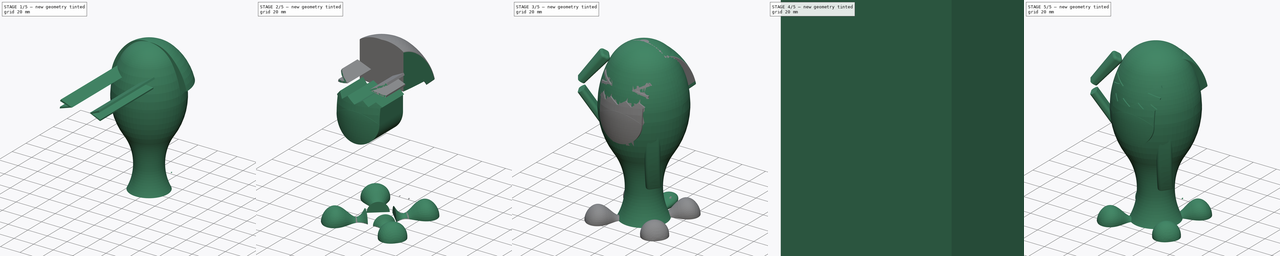
[diagram: build sequence overview — one tinted view per stage of 5, left to right]
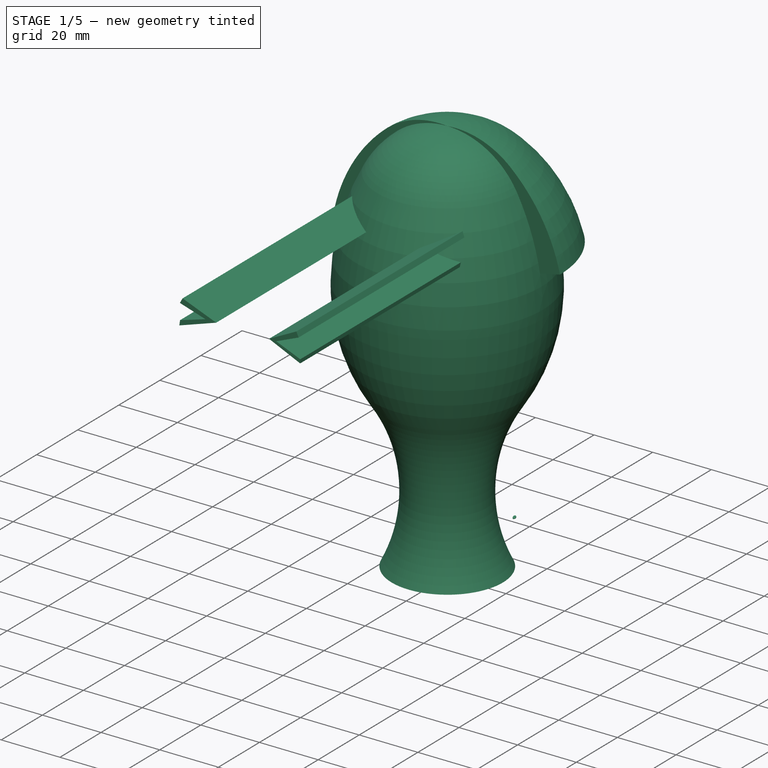
[diagram: stage 1 of 5 — iso view after this stage's code; geometry added in this stage tinted green]
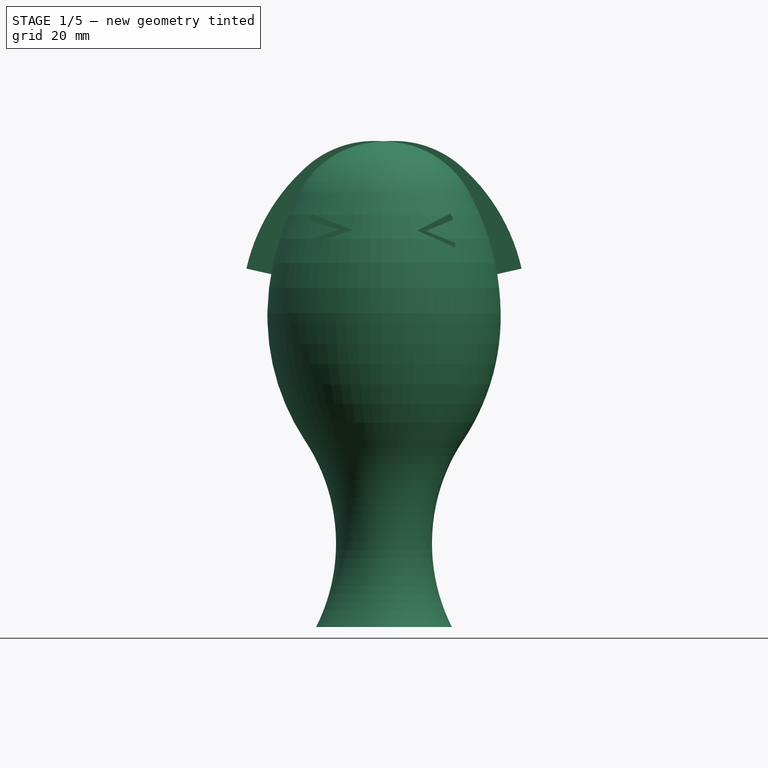
[diagram: stage 1 of 5 — front view after this stage's code; geometry added in this stage tinted green]
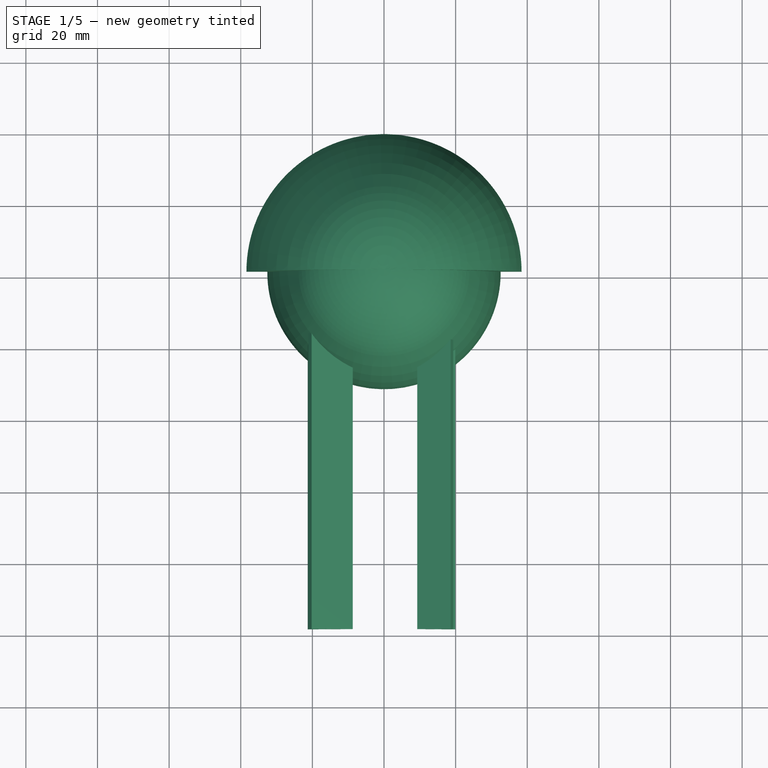
[diagram: stage 1 of 5 — top view after this stage's code; geometry added in this stage tinted green]
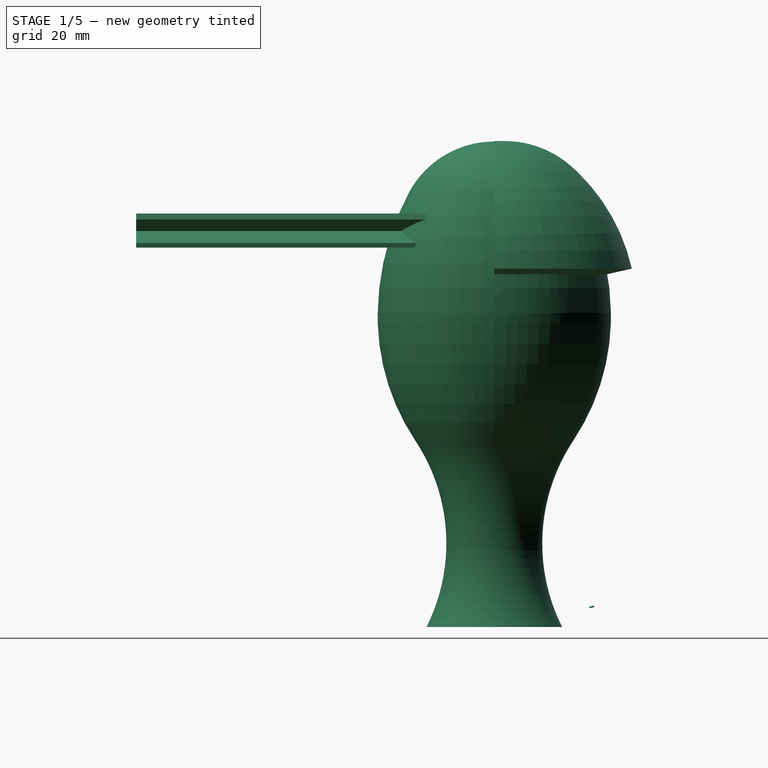
[diagram: stage 1 of 5 — right view after this stage's code; geometry added in this stage tinted green]
FCSTD DOCUMENT  (FreeCAD 1.0R39109 (Git))
Label: s
License: All rights reserved
LicenseURL: https://en.wikipedia.org/wiki/All_rights_reserved
objects: Sketcher::SketchObject×72, Part::Loft×18, Part::Face×16, Part::FeaturePython×16, App::Part×16, Part::Fillet×14, Part::Extrusion×12, Part::MultiCommon×10, Part::Cut×8, Part::Part2DObjectPython×8, PartDesign::Revolution×4, PartDesign::Body×4, Part::MultiFuse×2
note: 264 computed .brp shape members not serialized (recipe doc carries the construction recipe); baked Part::Feature solids carry a one-line shape summary decoded from their .brp

FEATURE [App::Part] Part006  label="tail"
  Group = -> [Ellipse003,Ellipse001,Ellipse002,Ellipse,Loft009,Sketch043,Clone004,Extrude004,Clone003,Common003,Cut001,Cut002,Sketch044,Clone006,Clone005,Common004,Clone007,Extrude005,Cut003]
  Origin = -> Origin008
  Placement = pos=(0,12.5,4.33013) rot=(1,0,0;0.523599rad)
FEATURE [App::Part] Part007  label="main"
  Group = -> [Part,Part001,Part002,Part003,Part004,Part005,Part006]
  Origin = -> Origin009
FEATURE [Part::Part2DObjectPython] Ellipse004  # Draft 2D object (typed FeaturePython)
  Area = 0
  FirstAngle = 0
  LastAngle = 0
  MajorRadius = 4.5
  MakeFace = false
  MinorRadius = 2.5
  Placement = pos=(0.12619,0,0.187771) rot=(1,0,0;1.5708rad)
FEATURE [Part::Part2DObjectPython] Ellipse005  # Draft 2D object (typed FeaturePython)
  Area = 0
  FirstAngle = 0
  LastAngle = 0
  MajorRadius = 5.54876
  MakeFace = false
  MinorRadius = 3.01273
  Placement = pos=(-0.04115,18,0.28) rot=(1,0,0;1.5708rad)
FEATURE [Part::Part2DObjectPython] Ellipse006  # Draft 2D object (typed FeaturePython)
  Area = 0
  FirstAngle = 0
  LastAngle = 0
  MajorRadius = 6.6547
  MakeFace = false
  MinorRadius = 3.83265
  Placement = pos=(0.11,32,2.53) rot=(1,0,0;1.5708rad)
FEATURE [Part::Part2DObjectPython] Ellipse007  # Draft 2D object (typed FeaturePython)
  Area = 0
  FirstAngle = 0
  LastAngle = 0
  MajorRadius = 1.43009
  MakeFace = false
  MinorRadius = 0.552969
  Placement = pos=(0.07326,37,3.04656) rot=(1,0,0;1.5708rad)
FEATURE [Part::Loft] Loft018  label="Loft026"
  Closed = false
  MaxDegree = 5
  Ruled = false
  Sections = -> [Ellipse004,Ellipse005,Ellipse006,Ellipse007]
  Solid = true
FEATURE [Part::FeaturePython] Clone011  label="Loft014"  # Draft clone (typed FeaturePython)
  AttacherType = Attacher::AttachEngine3D
  Fuse = false
  Objects = -> [Loft018]
  Placement = pos=(0,0,0.2) rot=(0,0,1;0rad)
  Scale = (1,1,1)
FEATURE [Part::FeaturePython] Clone012  label="Loft015"  # Draft clone (typed FeaturePython)
  AttacherType = Attacher::AttachEngine3D
  Fuse = false
  Objects = -> [Loft018]
  Scale = (1,1,1)
FEATURE [Part::FeaturePython] Clone013  label="Loft016"  # Draft clone (typed FeaturePython)
  AttacherType = Attacher::AttachEngine3D
  Fuse = false
  Objects = -> [Loft018]
  Placement = pos=(0,0,0.4) rot=(0,0,1;0rad)
  Scale = (1,1,1)
FEATURE [Part::FeaturePython] Clone014  label="Loft017"  # Draft clone (typed FeaturePython)
  AttacherType = Attacher::AttachEngine3D
  Fuse = false
  Objects = -> [Loft018]
  Scale = (1,1,1)
FEATURE [Sketcher::SketchObject] Sketch045
  ArcFitTolerance = 1e-06
  AttachmentSupport = -> [XZ_Plane010]
  FullyConstrained = false
  MakeInternals = false
  MapMode = 5
  Placement = pos=(0,0,0) rot=(1,0,0;1.5708rad)
  sketch-geometry (6):
    g0: LineSegment StartX=0 StartY=0 StartZ=0 EndX=0 EndY=135.563 EndZ=0
    g1: ArcOfCircle CenterX=-1.7e-15 CenterY=108.488 CenterZ=0 NormalX=0 NormalY=0 NormalZ=1 AngleXU=0 Radius=27.0753 StartAngle=0.492125 EndAngle=1.5708
    g2: ArcOfCircle CenterX=-40.9347 CenterY=86.5422 CenterZ=0 NormalX=0 NormalY=0 NormalZ=1 AngleXU=0 Radius=73.5217 StartAngle=0.015702 EndAngle=0.492125
    g3: ArcOfCircle CenterX=-29.8019 CenterY=86.717 CenterZ=0 NormalX=0 NormalY=0 NormalZ=1 AngleXU=0 Radius=62.3875 StartAngle=5.69501 EndAngle=6.29889
    g4: ArcOfCircle CenterX=65.2118 CenterY=23.3504 CenterZ=0 NormalX=0 NormalY=0 NormalZ=1 AngleXU=0 Radius=51.8182 StartAngle=2.55341 EndAngle=3.60905
    g5: LineSegment StartX=0 StartY=0 StartZ=0 EndX=18.953 EndY=8.08278e-11 EndZ=0
  constraints (9):
    c: Coincident(g-1,g0)
    c: PointOnObject(g0,g-2)
    c: Perpendicular(g0,g1) = 1.5708
    c: Tangent(g1,g2) = -1.5708
    c: Tangent(g2,g3) = -1.5708
    c: Tangent(g3,g4) = 1.5708
    c: PointOnObject(g4,g-1)
    c: Coincident(g5,g0)
    c: Coincident(g5,g4)
FEATURE [PartDesign::Revolution] Revolution002
  Angle = 360
  Angle2 = 60
  Axis = (0,2e-16,1)
  Base = (0,0,0)
  Placement = pos=(0,0,0) rot=(1,0,0;1.5708rad)
  Profile = -> Sketch045
  ReferenceAxis = -> Sketch045 [V_Axis]
  Refine = true
  Reversed = true
  Suppressed = false
  Type = 0
FEATURE [Sketcher::SketchObject] Sketch053
  ArcFitTolerance = 1e-06
  FullyConstrained = false
  MakeInternals = false
  sketch-geometry (13):
    g0: LineSegment StartX=-3.19293 StartY=-2.6774 StartZ=0 EndX=3.19293 EndY=-2.6774 EndZ=0
    g1: LineSegment StartX=5.50674 StartY=-0.363597 StartZ=0 EndX=5.50674 EndY=0.363597 EndZ=0
    g2: LineSegment StartX=3.19293 StartY=2.6774 StartZ=0 EndX=-3.19293 EndY=2.6774 EndZ=0
    g3: LineSegment StartX=-5.50674 StartY=0.363597 StartZ=0 EndX=-5.50674 EndY=-0.363597 EndZ=0
    g4: GeomPoint [constr] X=0 Y=0 Z=0
    g5: ArcOfCircle CenterX=3.19293 CenterY=0.363597 CenterZ=0 NormalX=0 NormalY=0 NormalZ=1 AngleXU=0 Radius=2.3138 StartAngle=0 EndAngle=1.5708
    g6: GeomPoint [constr] X=5.50674 Y=2.6774 Z=0
    g7: ArcOfCircle CenterX=3.19293 CenterY=-0.363597 CenterZ=0 NormalX=0 NormalY=0 NormalZ=1 AngleXU=0 Radius=2.3138 StartAngle=4.71239 EndAngle=6.28319
    g8: GeomPoint [constr] X=5.50674 Y=-2.6774 Z=0
    g9: ArcOfCircle CenterX=-3.19293 CenterY=-0.363597 CenterZ=0 NormalX=0 NormalY=0 NormalZ=1 AngleXU=0 Radius=2.3138 StartAngle=3.14159 EndAngle=4.71239
    g10: GeomPoint [constr] X=-5.50674 Y=-2.6774 Z=0
    g11: ArcOfCircle CenterX=-3.19293 CenterY=0.363597 CenterZ=0 NormalX=0 NormalY=0 NormalZ=1 AngleXU=0 Radius=2.3138 StartAngle=1.5708 EndAngle=3.14159
    g12: GeomPoint [constr] X=-5.50674 Y=2.6774 Z=0
  constraints (25):
    c: Horizontal(g0)
    c: Horizontal(g2)
    c: Vertical(g1)
    c: Vertical(g3)
    c: Symmetric(g6,g10,g4)
    c: Coincident(g4,g-1)
    c: PointOnObject(g6,g1)
    c: PointOnObject(g6,g2)
    c: Tangent(g1,g5) = -1.5708
    c: Tangent(g2,g5) = -1.5708
    c: PointOnObject(g8,g1)
    c: PointOnObject(g8,g0)
    c: Tangent(g1,g7) = -1.5708
    c: Tangent(g0,g7) = -1.5708
    c: PointOnObject(g10,g0)
    c: PointOnObject(g10,g3)
    c: Tangent(g0,g9) = -1.5708
    c: Tangent(g3,g9) = -1.5708
    c: PointOnObject(g12,g3)
    c: PointOnObject(g12,g2)
    c: Tangent(g3,g11) = -1.5708
    c: Tangent(g2,g11) = -1.5708
    c: Equal(g11,g5)
    c: Equal(g5,g7)
    c: Equal(g7,g9)
FEATURE [Part::Face] Face015
  FaceMakerClass = Part::FaceMakerBullseye
  Placement = pos=(-40.7564,-20.3592,99.1027) rot=(0,0,-1;0.959931rad)
  Sources = -> [Sketch053]
FEATURE [Part::Loft] Loft012  label="Loft020"
  Closed = false
  MaxDegree = 5
  Ruled = false
  Sections = -> [Face012,Face015,Face014]
  Solid = false
FEATURE [App::Part] Part009  label="right_arm001"
  Group = -> [Sketch049,Sketch050,Sketch051,Face012,Face014,Face011,Face013,Sketch052,Face015,Sketch053,Fillet009,Loft013,Loft012,Loft011]
  Origin = -> Origin013
FEATURE [Sketcher::SketchObject] Sketch054
  ArcFitTolerance = 1e-06
  FullyConstrained = false
  MakeInternals = false
  Placement = pos=(0,0,0) rot=(1,0,0;1.5708rad)
  sketch-geometry (13):
    g0: LineSegment StartX=-20.1977 StartY=115.267 StartZ=0 EndX=-8.74047 EndY=110.839 EndZ=0
    g1: LineSegment StartX=-8.74047 StartY=110.839 StartZ=0 EndX=-21.3076 EndY=106.637 EndZ=0
    g2: LineSegment StartX=18.5995 StartY=115.452 StartZ=0 EndX=9.27716 EndY=110.699 EndZ=0
    g3: LineSegment StartX=9.27716 StartY=110.699 StartZ=0 EndX=19.8791 EndY=105.947 EndZ=0
    g4: LineSegment StartX=18.5995 StartY=115.452 StartZ=0 EndX=19.3274 EndY=113.773 EndZ=0
    g5: LineSegment StartX=19.3274 StartY=113.773 StartZ=0 EndX=11.6822 EndY=110.574 EndZ=0
    g6: LineSegment StartX=11.6822 StartY=110.574 StartZ=0 EndX=11.7336 EndY=110.574 EndZ=0
    g7: LineSegment StartX=11.7336 StartY=110.574 StartZ=0 EndX=19.9084 EndY=107.233 EndZ=0
    g8: LineSegment StartX=19.9084 StartY=107.233 StartZ=0 EndX=19.8791 EndY=105.947 EndZ=0
    g9: LineSegment StartX=-20.1977 StartY=115.267 StartZ=0 EndX=-21.1193 EndY=113.624 EndZ=0
    g10: LineSegment StartX=-21.1193 StartY=113.624 StartZ=0 EndX=-12.4163 EndY=110.936 EndZ=0
    g11: LineSegment StartX=-12.4163 StartY=110.936 StartZ=0 EndX=-21.0584 EndY=108.328 EndZ=0
    g12: LineSegment StartX=-21.0584 StartY=108.328 StartZ=0 EndX=-21.3076 EndY=106.637 EndZ=0
  constraints (14):
    c: Coincident(g1,g0)
    c: Coincident(g3,g2)
    c: Coincident(g4,g2)
    c: Coincident(g4,g5)
    c: Coincident(g5,g6)
    c: Horizontal(g6)
    c: Coincident(g6,g7)
    c: Coincident(g7,g8)
    c: Coincident(g8,g3)
    c: Coincident(g0,g9)
    c: Coincident(g9,g10)
    c: Coincident(g10,g11)
    c: Coincident(g11,g12)
    c: Coincident(g12,g1)
FEATURE [Part::Extrusion] Extrude006
  Base = -> Sketch054
  Dir = (0,-1,2e-16)
  DirMode = 2
  FaceMakerClass = Part::FaceMakerBullseye
  FaceMakerMode = 3
  LengthFwd = 100
  LengthRev = 0
  Solid = true
  Symmetric = false
FEATURE [Sketcher::SketchObject] Sketch077
  ArcFitTolerance = 1e-06
  AttachmentSupport = -> [XZ_Plane011]
  ExternalGeometry = -> [Sketch045]
  FullyConstrained = false
  MakeInternals = false
  MapMode = 5
  Placement = pos=(0,0,0) rot=(1,0,0;1.5708rad)
  sketch-geometry (6):
    g0: LineSegment StartX=0 StartY=99.3884 StartZ=0 EndX=29.7233 EndY=102.248 EndZ=0
    g1: LineSegment StartX=29.7233 StartY=102.248 StartZ=0 EndX=31.3246 EndY=98.4734 EndZ=0
    g2: LineSegment StartX=31.3246 StartY=98.4734 StartZ=0 EndX=38.416 EndY=100.075 EndZ=0
    g3: ArcOfCircle CenterX=-14.3099 CenterY=88.1688 CenterZ=0 NormalX=0 NormalY=0 NormalZ=1 AngleXU=0 Radius=54.0533 StartAngle=0.222083 EndAngle=0.84695
    g4: ArcOfCircle CenterX=2.8854 CenterY=107.623 CenterZ=0 NormalX=0 NormalY=0 NormalZ=1 AngleXU=0 Radius=28.0892 StartAngle=0.84695 EndAngle=1.6737
    g5: LineSegment StartX=3.77e-13 StartY=135.563 StartZ=0 EndX=0 EndY=99.3884 EndZ=0
  constraints (8):
    c: PointOnObject(g0,g-2)
    c: Coincident(g0,g1)
    c: Coincident(g1,g2)
    c: Perpendicular(g2,g3) = 1.5708
    c: Tangent(g3,g4) = -1.5708
    c: Coincident(g4,g-3)
    c: Coincident(g4,g5)
    c: Coincident(g5,g0)
FEATURE [PartDesign::Revolution] Revolution003
  Angle = 180
  Angle2 = 60
  Axis = (0,2e-16,1)
  Base = (0,0,0)
  Placement = pos=(0,0,0) rot=(1,0,0;1.5708rad)
  Profile = -> Sketch077
  ReferenceAxis = -> Sketch077 [V_Axis]
  Refine = true
  Suppressed = false
  Type = 0
FEATURE [App::Part] Part010  label="body001"
  Group = -> [Fillet012,Fillet011,Fillet010,Fillet013,Loft015,Loft014,Loft016,Loft017,Body003,Body002,Cut004,Sketch060,Sketch057,Sketch059,Sketch078,Sketch058,Extrude009,Sketch065,Sketch067,Sketch061,Sketch063,Sketch064,Sketch062,Sketch066,Sketch068,Sketch072,Sketch075,Sketch073,Sketch071,Sketch070,Sketch069,Sketch074,Sketch076,Fusion001]
  Origin = -> Origin014
FEATURE [Sketcher::SketchObject] Sketch079
  ArcFitTolerance = 1e-06
  FullyConstrained = false
  MakeInternals = false
  Placement = pos=(0,0,3) rot=(0,0,1;0rad)
  sketch-geometry (10):
    g0: Ellipse CenterX=-3.82128 CenterY=27.0357 CenterZ=0 NormalX=0 NormalY=0 NormalZ=1 MajorRadius=3.926 MinorRadius=2.35511 AngleXU=1.58089
    g1: LineSegment [constr] StartX=-3.86089 StartY=30.9615 StartZ=0 EndX=-3.78166 EndY=23.1099 EndZ=0
    g2: LineSegment [constr] StartX=-6.17627 StartY=27.0119 StartZ=0 EndX=-1.46628 EndY=27.0595 EndZ=0
    g3: GeomPoint [constr] X=-3.85297 Y=30.1767 Z=0
    g4: GeomPoint [constr] X=-3.78958 Y=23.8947 Z=0
    g5: Ellipse CenterX=3.82128 CenterY=27.0357 CenterZ=0 NormalX=0 NormalY=0 NormalZ=1 MajorRadius=3.926 MinorRadius=2.35511 AngleXU=1.56071
    g6: LineSegment [constr] StartX=3.86089 StartY=30.9615 StartZ=0 EndX=3.78166 EndY=23.1099 EndZ=0
    g7: LineSegment [constr] StartX=6.17627 StartY=27.0119 StartZ=0 EndX=1.46628 EndY=27.0595 EndZ=0
    g8: GeomPoint [constr] X=3.85297 Y=30.1767 Z=0
    g9: GeomPoint [constr] X=3.78958 Y=23.8947 Z=0
  constraints (2):
    c: InternalAlignment(g1-g4 -> g0) x4
    c: InternalAlignment(g6-g9 -> g5) x4
FEATURE [Part::Extrusion] Extrude010
  Base = -> Sketch079
  Dir = (0,0,1)
  DirMode = 2
  FaceMakerClass = Part::FaceMakerBullseye
  FaceMakerMode = 3
  LengthFwd = 30
  LengthRev = 0
  Solid = true
  Symmetric = false
FEATURE [Part::MultiCommon] Common008
  Refine = true
  Shapes = -> [Extrude010,Clone011]
FEATURE [Part::Cut] Cut005  label="Cut007"
  Base = -> Common008
  Refine = true
  Tool = -> Clone012
FEATURE [Part::FeaturePython] Clone015  label="Cut005"  # Draft clone (typed FeaturePython)
  AttacherType = Attacher::AttachEngine3D
  Fuse = false
  Objects = -> [Cut005]
  Scale = (1,1,1)
FEATURE [Sketcher::SketchObject] Sketch080
  ArcFitTolerance = 1e-06
  FullyConstrained = false
  MakeInternals = false
  Placement = pos=(0,0,3) rot=(0,0,1;0rad)
  sketch-geometry (10):
    g0: Ellipse CenterX=-3.84428 CenterY=27.2171 CenterZ=0 NormalX=0 NormalY=0 NormalZ=1 MajorRadius=0.690708 MinorRadius=0.386873 AngleXU=1.5708
    g1: LineSegment [constr] StartX=-3.84428 StartY=27.9078 StartZ=0 EndX=-3.84428 EndY=26.5264 EndZ=0
    g2: LineSegment [constr] StartX=-4.23116 StartY=27.2171 StartZ=0 EndX=-3.45741 EndY=27.2171 EndZ=0
    g3: GeomPoint [constr] X=-3.84428 Y=27.7893 Z=0
    g4: GeomPoint [constr] X=-3.84428 Y=26.6449 Z=0
    g5: Ellipse CenterX=3.84428 CenterY=27.2171 CenterZ=0 NormalX=0 NormalY=0 NormalZ=1 MajorRadius=0.690708 MinorRadius=0.386873 AngleXU=1.5708
    g6: LineSegment [constr] StartX=3.84428 StartY=27.9078 StartZ=0 EndX=3.84428 EndY=26.5264 EndZ=0
    g7: LineSegment [constr] StartX=4.23116 StartY=27.2171 StartZ=0 EndX=3.45741 EndY=27.2171 EndZ=0
    g8: GeomPoint [constr] X=3.84428 Y=27.7893 Z=0
    g9: GeomPoint [constr] X=3.84428 Y=26.6449 Z=0
  constraints (2):
    c: InternalAlignment(g1-g4 -> g0) x4
    c: InternalAlignment(g6-g9 -> g5) x4
FEATURE [Part::Extrusion] Extrude011
  Base = -> Sketch080
  Dir = (0,0,1)
  DirMode = 2
  FaceMakerClass = Part::FaceMakerBullseye
  FaceMakerMode = 3
  LengthFwd = 40
  LengthRev = 0
  Solid = true
  Symmetric = false
FEATURE [Part::MultiCommon] Common009
  Refine = true
  Shapes = -> [Extrude011,Clone013]
FEATURE [Part::Cut] Cut006  label="Cut008"
  Base = -> Common009
  Refine = true
  Tool = -> Clone014
FEATURE [Part::Cut] Cut007  label="Cut009"
  Base = -> Cut006
  Refine = true
  Tool = -> Clone015
FEATURE [App::Part] Part014  label="tail001"
  Group = -> [Ellipse007,Ellipse005,Ellipse006,Ellipse004,Loft018,Sketch079,Clone012,Extrude010,Clone011,Common008,Cut005,Cut006,Sketch080,Clone014,Clone013,Common009,Clone015,Extrude011,Cut007]
  Origin = -> Origin018
  Placement = pos=(0,12.5,4.33013) rot=(1,0,0;0.523599rad)
FEATURE [App::Part] Part015  label="main001"
  Group = -> [Part008,Part009,Part010,Part011,Part012,Part013,Part014]
  Origin = -> Origin019
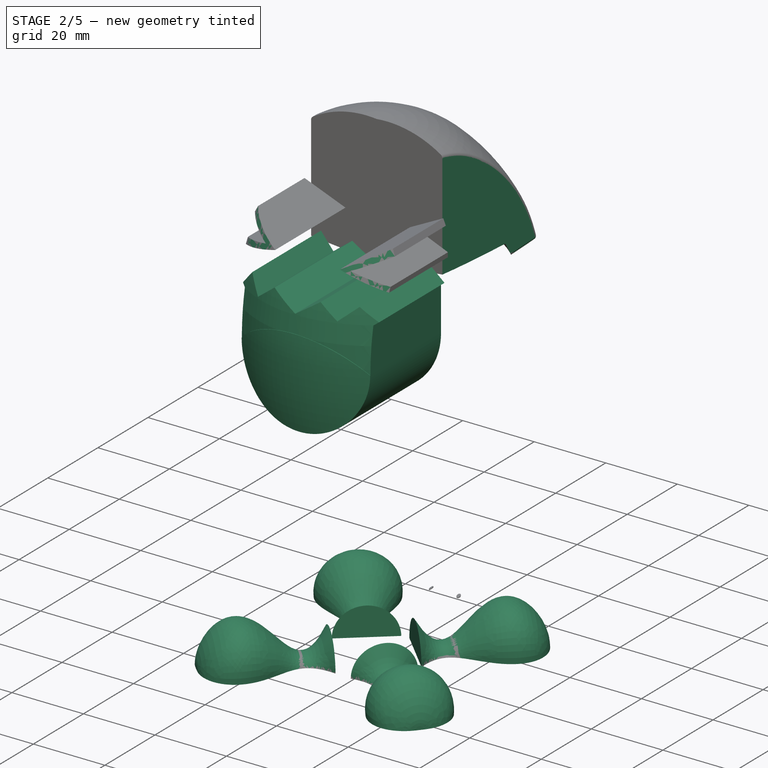
[diagram: stage 2 of 5 — iso view after this stage's code; geometry added in this stage tinted green]
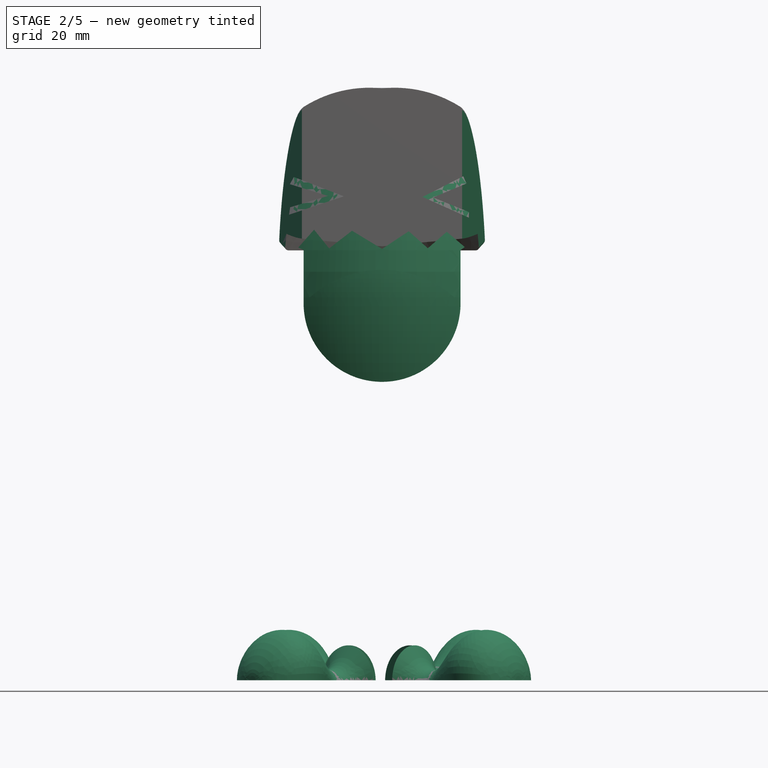
[diagram: stage 2 of 5 — front view after this stage's code; geometry added in this stage tinted green]
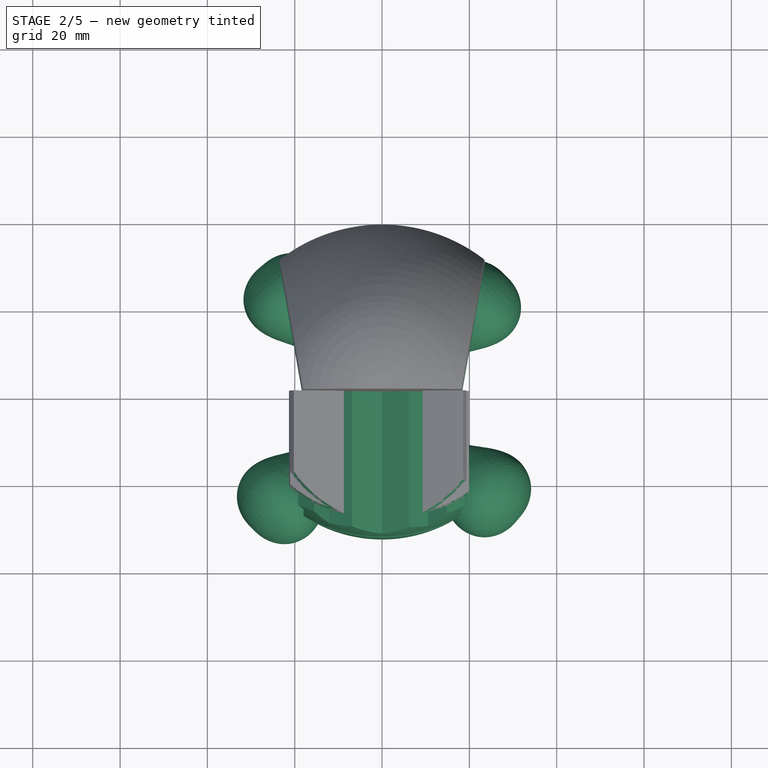
[diagram: stage 2 of 5 — top view after this stage's code; geometry added in this stage tinted green]
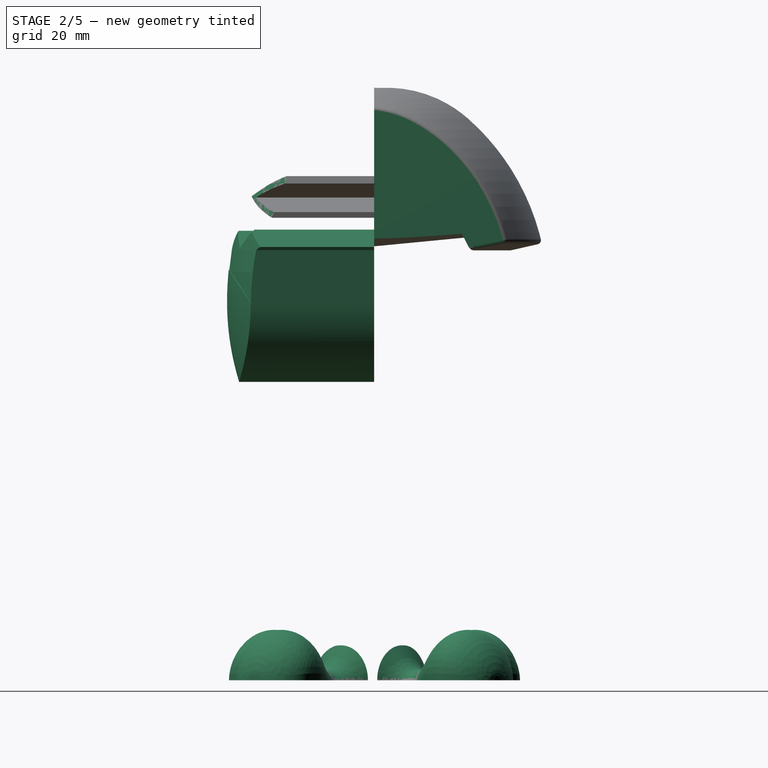
[diagram: stage 2 of 5 — right view after this stage's code; geometry added in this stage tinted green]
FEATURE [PartDesign::Body] Body002  label="Body005"
  AllowCompound = false
  Group = -> [Sketch045,Revolution002]
  Origin = -> Origin010
  Tip = -> Revolution002
FEATURE [Part::FeaturePython] Clone008  label="Body007"  # Draft clone (typed FeaturePython)
  AttacherType = Attacher::AttachEngine3D
  Fuse = false
  Objects = -> [Body002]
  Placement = pos=(0,-1,0) rot=(0,0,1;0rad)
  Scale = (1,1,1)
FEATURE [Part::FeaturePython] Clone009  label="Body008"  # Draft clone (typed FeaturePython)
  AttacherType = Attacher::AttachEngine3D
  Fuse = false
  Objects = -> [Body002]
  Placement = pos=(0,-1,0) rot=(0,0,1;0rad)
  Scale = (1,1,1)
FEATURE [Part::FeaturePython] Clone010  label="Body009"  # Draft clone (typed FeaturePython)
  AttacherType = Attacher::AttachEngine3D
  Fuse = false
  Objects = -> [Body002]
  Placement = pos=(0,-1.1,0) rot=(0,0,1;0rad)
  Scale = (1,1,1)
FEATURE [Part::MultiCommon] Common005
  Refine = true
  Shapes = -> [Clone008,Extrude006]
FEATURE [App::Part] Part013  label="eye001"
  Group = -> [Clone008,Extrude006,Sketch054,Common005]
  Origin = -> Origin017
FEATURE [Sketcher::SketchObject] Sketch055
  ArcFitTolerance = 1e-06
  FullyConstrained = false
  MakeInternals = false
  Placement = pos=(0,0,0) rot=(1,0,0;1.5708rad)
  sketch-geometry (13):
    g0: LineSegment StartX=-19.1841 StartY=99.1166 StartZ=0 EndX=-15.573 EndY=103.202 EndZ=0
    g1: LineSegment StartX=-15.573 StartY=103.202 StartZ=0 EndX=-12.1165 EndY=98.911 EndZ=0
    g2: LineSegment StartX=-12.1165 StartY=98.911 StartZ=0 EndX=-6.87209 EndY=102.963 EndZ=0
    g3: LineSegment StartX=-6.87209 StartY=102.963 StartZ=0 EndX=0 EndY=98.7953 EndZ=0
    g4: LineSegment StartX=0 StartY=98.7953 StartZ=0 EndX=6.11962 EndY=102.844 EndZ=0
    g5: LineSegment StartX=6.11962 StartY=102.844 StartZ=0 EndX=10.4856 EndY=98.9559 EndZ=0
    g6: LineSegment StartX=10.4856 StartY=98.9559 StartZ=0 EndX=14.8205 EndY=102.725 EndZ=0
    g7: LineSegment StartX=14.8205 StartY=102.725 StartZ=0 EndX=18.9474 EndY=99.2237 EndZ=0
    g8: LineSegment StartX=-19.1841 StartY=99.1166 StartZ=0 EndX=-17.97 EndY=98.5275 EndZ=0
    g9: LineSegment StartX=18.9474 StartY=99.2237 StartZ=0 EndX=17.97 EndY=98.5275 EndZ=0
    g10: ArcOfCircle CenterX=0 CenterY=86.3191 CenterZ=0 NormalX=0 NormalY=0 NormalZ=1 AngleXU=0 Radius=17.97 StartAngle=3.14159 EndAngle=6.28319
    g11: LineSegment StartX=17.97 StartY=98.5275 StartZ=0 EndX=17.97 EndY=86.3191 EndZ=0
    g12: LineSegment StartX=-17.97 StartY=98.5275 StartZ=0 EndX=-17.97 EndY=86.3191 EndZ=0
  constraints (17):
    c: Coincident(g0,g1)
    c: Coincident(g1,g2)
    c: Coincident(g2,g3)
    c: Coincident(g4,g5)
    c: Coincident(g5,g6)
    c: Coincident(g6,g7)
    c: Coincident(g0,g8)
    c: Coincident(g7,g9)
    c: Tangent(g10,g11) = 1.5708
    c: Tangent(g10,g12) = -1.5708
    c: Vertical(g12)
    c: PointOnObject(g10,g-2)
    c: Parallel(g12,g11)
    c: Coincident(g3,g4)
    c: Coincident(g11,g9)
    c: Coincident(g8,g12)
    c: PointOnObject(g3,g-2)
FEATURE [Part::Extrusion] Extrude007
  Base = -> Sketch055
  Dir = (0,-1,2e-16)
  DirMode = 2
  FaceMakerClass = Part::FaceMakerBullseye
  FaceMakerMode = 3
  LengthFwd = 100
  LengthRev = 0
  Solid = true
  Symmetric = false
FEATURE [Part::MultiCommon] Common006
  Refine = true
  Shapes = -> [Extrude007,Clone009]
FEATURE [App::Part] Part011  label="mouse001"
  Group = -> [Extrude007,Sketch055,Clone009,Common006]
  Origin = -> Origin015
FEATURE [Sketcher::SketchObject] Sketch056
  ArcFitTolerance = 1e-06
  FullyConstrained = false
  MakeInternals = false
  Placement = pos=(0,0,0) rot=(1,0,0;1.5708rad)
  sketch-geometry (2):
    g0: ArcOfCircle CenterX=0 CenterY=86.3191 CenterZ=0 NormalX=0 NormalY=0 NormalZ=1 AngleXU=0 Radius=17.97 StartAngle=3.14159 EndAngle=6.28319
    g1: ArcOfCircle CenterX=2.2691e-12 CenterY=69.1681 CenterZ=0 NormalX=0 NormalY=0 NormalZ=1 AngleXU=0 Radius=24.841 StartAngle=0.762083 EndAngle=2.37951
  constraints (3):
    c: PointOnObject(g0,g-2)
    c: Coincident(g1,g0)
    c: Coincident(g1,g0)
FEATURE [Part::Extrusion] Extrude008
  Base = -> Sketch056
  Dir = (0,-1,2e-16)
  DirMode = 2
  FaceMakerClass = Part::FaceMakerBullseye
  FaceMakerMode = 3
  LengthFwd = 100
  LengthRev = 0
  Solid = true
  Symmetric = false
FEATURE [Part::MultiCommon] Common007
  Refine = true
  Shapes = -> [Extrude008,Clone010]
FEATURE [App::Part] Part012  label="tangue001"
  Group = -> [Clone010,Extrude008,Sketch056,Common007]
  Origin = -> Origin016
FEATURE [Sketcher::SketchObject] Sketch057
  ArcFitTolerance = 1e-06
  FullyConstrained = false
  MakeInternals = false
  Placement = pos=(38,0,0) rot=(0,1,0;1.5708rad)
  sketch-geometry (2):
    g0: LineSegment StartX=-1.18e-14 StartY=-10 StartZ=0 EndX=-1.18e-14 EndY=10 EndZ=0
    g1: ArcOfCircle CenterX=-1 CenterY=0 CenterZ=0 NormalX=1e-16 NormalY=0 NormalZ=1 AngleXU=1.5708 Radius=10.0499 StartAngle=6.18352 EndAngle=9.52445
  constraints (1):
    c: Vertical(g0)
FEATURE [Sketcher::SketchObject] Sketch058
  ArcFitTolerance = 1e-06
  FullyConstrained = false
  MakeInternals = false
  Placement = pos=(42,1.15e-14,-6.7e-15) rot=(0,1,0;1.5708rad)
  sketch-geometry (2):
    g0: ArcOfCircle CenterX=-1.15e-14 CenterY=-1.15e-14 CenterZ=0 NormalX=-2e-16 NormalY=0 NormalZ=1 AngleXU=1.5708 Radius=8 StartAngle=0 EndAngle=3.14159
    g1: LineSegment StartX=-7.2e-15 StartY=-8 StartZ=0 EndX=-7.2e-15 EndY=8 EndZ=0
  constraints (1):
    c: Vertical(g1)
FEATURE [Sketcher::SketchObject] Sketch059
  ArcFitTolerance = 1e-06
  FullyConstrained = false
  MakeInternals = false
  Placement = pos=(45,0,0) rot=(0,1,0;1.5708rad)
  sketch-geometry (2):
    g0: ArcOfCircle CenterX=3.2e-15 CenterY=0 CenterZ=0 NormalX=3e-16 NormalY=4e-16 NormalZ=1 AngleXU=2e-16 Radius=1 StartAngle=0 EndAngle=3.14159
    g1: LineSegment StartX=3.3e-15 StartY=-1 StartZ=0 EndX=3.3e-15 EndY=1 EndZ=0
  constraints (1):
    c: Vertical(g1)
FEATURE [Sketcher::SketchObject] Sketch060
  ArcFitTolerance = 1e-06
  FullyConstrained = false
  MakeInternals = false
  Placement = pos=(14,1.15e-14,0) rot=(0,1,0;1.5708rad)
  sketch-geometry (2):
    g0: ArcOfCircle CenterX=-1.15e-14 CenterY=-1.15e-14 CenterZ=0 NormalX=-2e-16 NormalY=0 NormalZ=1 AngleXU=1.5708 Radius=8 StartAngle=0 EndAngle=3.14159
    g1: LineSegment StartX=-7.2e-15 StartY=-8 StartZ=0 EndX=-7.2e-15 EndY=8 EndZ=0
  constraints (1):
    c: Vertical(g1)
FEATURE [Sketcher::SketchObject] Sketch061
  ArcFitTolerance = 1e-06
  FullyConstrained = false
  MakeInternals = false
  Placement = pos=(26,0,0) rot=(0,1,0;1.5708rad)
  sketch-geometry (2):
    g0: ArcOfCircle CenterX=8.3e-15 CenterY=0 CenterZ=0 NormalX=1e-16 NormalY=0 NormalZ=1 AngleXU=1.5708 Radius=6 StartAngle=0 EndAngle=3.14159
    g1: LineSegment StartX=7.6e-15 StartY=-6 StartZ=0 EndX=7.6e-15 EndY=6 EndZ=0
  constraints (1):
    c: Vertical(g1)
FEATURE [Part::Loft] Loft014  label="Loft022"
  Closed = false
  MaxDegree = 5
  Placement = pos=(-3.53553,-3.53553,0) rot=(0,0,1;0.785398rad)
  Ruled = false
  Sections = -> [Sketch060,Sketch061,Sketch057,Sketch058,Sketch059]
  Solid = true
FEATURE [Sketcher::SketchObject] Sketch062
  ArcFitTolerance = 1e-06
  FullyConstrained = false
  MakeInternals = false
  Placement = pos=(38,0,0) rot=(0,1,0;1.5708rad)
  sketch-geometry (2):
    g0: LineSegment StartX=-1.18e-14 StartY=-10 StartZ=0 EndX=-1.18e-14 EndY=10 EndZ=0
    g1: ArcOfCircle CenterX=-1 CenterY=0 CenterZ=0 NormalX=1e-16 NormalY=0 NormalZ=1 AngleXU=1.5708 Radius=10.0499 StartAngle=6.18352 EndAngle=9.52445
  constraints (1):
    c: Vertical(g0)
FEATURE [Sketcher::SketchObject] Sketch063
  ArcFitTolerance = 1e-06
  FullyConstrained = false
  MakeInternals = false
  Placement = pos=(42,1.15e-14,-6.7e-15) rot=(0,1,0;1.5708rad)
  sketch-geometry (2):
    g0: ArcOfCircle CenterX=-1.15e-14 CenterY=-1.15e-14 CenterZ=0 NormalX=-2e-16 NormalY=0 NormalZ=1 AngleXU=1.5708 Radius=8 StartAngle=0 EndAngle=3.14159
    g1: LineSegment StartX=-7.2e-15 StartY=-8 StartZ=0 EndX=-7.2e-15 EndY=8 EndZ=0
  constraints (1):
    c: Vertical(g1)
FEATURE [Sketcher::SketchObject] Sketch064
  ArcFitTolerance = 1e-06
  FullyConstrained = false
  MakeInternals = false
  Placement = pos=(45,0,0) rot=(0,1,0;1.5708rad)
  sketch-geometry (2):
    g0: ArcOfCircle CenterX=3.2e-15 CenterY=0 CenterZ=0 NormalX=3e-16 NormalY=4e-16 NormalZ=1 AngleXU=2e-16 Radius=1 StartAngle=0 EndAngle=3.14159
    g1: LineSegment StartX=3.3e-15 StartY=-1 StartZ=0 EndX=3.3e-15 EndY=1 EndZ=0
  constraints (1):
    c: Vertical(g1)
FEATURE [Sketcher::SketchObject] Sketch065
  ArcFitTolerance = 1e-06
  FullyConstrained = false
  MakeInternals = false
  Placement = pos=(14,1.15e-14,0) rot=(0,1,0;1.5708rad)
  sketch-geometry (2):
    g0: ArcOfCircle CenterX=-1.15e-14 CenterY=-1.15e-14 CenterZ=0 NormalX=-2e-16 NormalY=0 NormalZ=1 AngleXU=1.5708 Radius=8 StartAngle=0 EndAngle=3.14159
    g1: LineSegment StartX=-7.2e-15 StartY=-8 StartZ=0 EndX=-7.2e-15 EndY=8 EndZ=0
  constraints (1):
    c: Vertical(g1)
FEATURE [Sketcher::SketchObject] Sketch066
  ArcFitTolerance = 1e-06
  FullyConstrained = false
  MakeInternals = false
  Placement = pos=(26,0,0) rot=(0,1,0;1.5708rad)
  sketch-geometry (2):
    g0: ArcOfCircle CenterX=8.3e-15 CenterY=0 CenterZ=0 NormalX=1e-16 NormalY=0 NormalZ=1 AngleXU=1.5708 Radius=6 StartAngle=0 EndAngle=3.14159
    g1: LineSegment StartX=7.6e-15 StartY=-6 StartZ=0 EndX=7.6e-15 EndY=6 EndZ=0
  constraints (1):
    c: Vertical(g1)
FEATURE [Part::Loft] Loft015  label="Loft023"
  Closed = false
  MaxDegree = 5
  Placement = pos=(-3.26252,1.45701,0) rot=(0,0,1;5.58505rad)
  Ruled = false
  Sections = -> [Sketch065,Sketch066,Sketch062,Sketch063,Sketch064]
  Solid = true
FEATURE [Sketcher::SketchObject] Sketch067
  ArcFitTolerance = 1e-06
  FullyConstrained = false
  MakeInternals = false
  Placement = pos=(38,0,0) rot=(0,1,0;1.5708rad)
  sketch-geometry (2):
    g0: LineSegment StartX=-1.18e-14 StartY=-10 StartZ=0 EndX=-1.18e-14 EndY=10 EndZ=0
    g1: ArcOfCircle CenterX=-1 CenterY=0 CenterZ=0 NormalX=1e-16 NormalY=0 NormalZ=1 AngleXU=1.5708 Radius=10.0499 StartAngle=6.18352 EndAngle=9.52445
  constraints (1):
    c: Vertical(g0)
FEATURE [Sketcher::SketchObject] Sketch068
  ArcFitTolerance = 1e-06
  FullyConstrained = false
  MakeInternals = false
  Placement = pos=(42,1.15e-14,-6.7e-15) rot=(0,1,0;1.5708rad)
  sketch-geometry (2):
    g0: ArcOfCircle CenterX=-1.15e-14 CenterY=-1.15e-14 CenterZ=0 NormalX=-2e-16 NormalY=0 NormalZ=1 AngleXU=1.5708 Radius=8 StartAngle=0 EndAngle=3.14159
    g1: LineSegment StartX=-7.2e-15 StartY=-8 StartZ=0 EndX=-7.2e-15 EndY=8 EndZ=0
  constraints (1):
    c: Vertical(g1)
FEATURE [Sketcher::SketchObject] Sketch069
  ArcFitTolerance = 1e-06
  FullyConstrained = false
  MakeInternals = false
  Placement = pos=(45,0,0) rot=(0,1,0;1.5708rad)
  sketch-geometry (2):
    g0: ArcOfCircle CenterX=3.2e-15 CenterY=0 CenterZ=0 NormalX=3e-16 NormalY=4e-16 NormalZ=1 AngleXU=2e-16 Radius=1 StartAngle=0 EndAngle=3.14159
    g1: LineSegment StartX=3.3e-15 StartY=-1 StartZ=0 EndX=3.3e-15 EndY=1 EndZ=0
  constraints (1):
    c: Vertical(g1)
FEATURE [Sketcher::SketchObject] Sketch070
  ArcFitTolerance = 1e-06
  FullyConstrained = false
  MakeInternals = false
  Placement = pos=(14,1.15e-14,0) rot=(0,1,0;1.5708rad)
  sketch-geometry (2):
    g0: ArcOfCircle CenterX=-1.15e-14 CenterY=-1.15e-14 CenterZ=0 NormalX=-2e-16 NormalY=0 NormalZ=1 AngleXU=1.5708 Radius=8 StartAngle=0 EndAngle=3.14159
    g1: LineSegment StartX=-7.2e-15 StartY=-8 StartZ=0 EndX=-7.2e-15 EndY=8 EndZ=0
  constraints (1):
    c: Vertical(g1)
FEATURE [Sketcher::SketchObject] Sketch071
  ArcFitTolerance = 1e-06
  FullyConstrained = false
  MakeInternals = false
  Placement = pos=(26,0,0) rot=(0,1,0;1.5708rad)
  sketch-geometry (2):
    g0: ArcOfCircle CenterX=8.3e-15 CenterY=0 CenterZ=0 NormalX=1e-16 NormalY=0 NormalZ=1 AngleXU=1.5708 Radius=6 StartAngle=0 EndAngle=3.14159
    g1: LineSegment StartX=7.6e-15 StartY=-6 StartZ=0 EndX=7.6e-15 EndY=6 EndZ=0
  constraints (1):
    c: Vertical(g1)
FEATURE [Part::Loft] Loft016  label="Loft024"
  Closed = false
  MaxDegree = 5
  Placement = pos=(1.39538,-3.96693,0) rot=(0,0,1;2.26893rad)
  Ruled = false
  Sections = -> [Sketch070,Sketch071,Sketch067,Sketch068,Sketch069]
  Solid = true
FEATURE [Sketcher::SketchObject] Sketch072
  ArcFitTolerance = 1e-06
  FullyConstrained = false
  MakeInternals = false
  Placement = pos=(38,0,0) rot=(0,1,0;1.5708rad)
  sketch-geometry (2):
    g0: LineSegment StartX=-1.18e-14 StartY=-10 StartZ=0 EndX=-1.18e-14 EndY=10 EndZ=0
    g1: ArcOfCircle CenterX=-1 CenterY=0 CenterZ=0 NormalX=1e-16 NormalY=0 NormalZ=1 AngleXU=1.5708 Radius=10.0499 StartAngle=6.18352 EndAngle=9.52445
  constraints (1):
    c: Vertical(g0)
FEATURE [Sketcher::SketchObject] Sketch073
  ArcFitTolerance = 1e-06
  FullyConstrained = false
  MakeInternals = false
  Placement = pos=(42,1.15e-14,-6.7e-15) rot=(0,1,0;1.5708rad)
  sketch-geometry (2):
    g0: ArcOfCircle CenterX=-1.15e-14 CenterY=-1.15e-14 CenterZ=0 NormalX=-2e-16 NormalY=0 NormalZ=1 AngleXU=1.5708 Radius=8 StartAngle=0 EndAngle=3.14159
    g1: LineSegment StartX=-7.2e-15 StartY=-8 StartZ=0 EndX=-7.2e-15 EndY=8 EndZ=0
  constraints (1):
    c: Vertical(g1)
FEATURE [Sketcher::SketchObject] Sketch074
  ArcFitTolerance = 1e-06
  FullyConstrained = false
  MakeInternals = false
  Placement = pos=(45,0,0) rot=(0,1,0;1.5708rad)
  sketch-geometry (2):
    g0: ArcOfCircle CenterX=3.2e-15 CenterY=0 CenterZ=0 NormalX=3e-16 NormalY=4e-16 NormalZ=1 AngleXU=2e-16 Radius=1 StartAngle=0 EndAngle=3.14159
    g1: LineSegment StartX=3.3e-15 StartY=-1 StartZ=0 EndX=3.3e-15 EndY=1 EndZ=0
  constraints (1):
    c: Vertical(g1)
FEATURE [Sketcher::SketchObject] Sketch075
  ArcFitTolerance = 1e-06
  FullyConstrained = false
  MakeInternals = false
  Placement = pos=(14,1.15e-14,0) rot=(0,1,0;1.5708rad)
  sketch-geometry (2):
    g0: ArcOfCircle CenterX=-1.15e-14 CenterY=-1.15e-14 CenterZ=0 NormalX=-2e-16 NormalY=0 NormalZ=1 AngleXU=1.5708 Radius=8 StartAngle=0 EndAngle=3.14159
    g1: LineSegment StartX=-7.2e-15 StartY=-8 StartZ=0 EndX=-7.2e-15 EndY=8 EndZ=0
  constraints (1):
    c: Vertical(g1)
FEATURE [Sketcher::SketchObject] Sketch076
  ArcFitTolerance = 1e-06
  FullyConstrained = false
  MakeInternals = false
  Placement = pos=(26,0,0) rot=(0,1,0;1.5708rad)
  sketch-geometry (2):
    g0: ArcOfCircle CenterX=8.3e-15 CenterY=0 CenterZ=0 NormalX=1e-16 NormalY=0 NormalZ=1 AngleXU=1.5708 Radius=6 StartAngle=0 EndAngle=3.14159
    g1: LineSegment StartX=7.6e-15 StartY=-6 StartZ=0 EndX=7.6e-15 EndY=6 EndZ=0
  constraints (1):
    c: Vertical(g1)
FEATURE [Part::Loft] Loft017  label="Loft025"
  Closed = false
  MaxDegree = 5
  Placement = pos=(2.12132,2.12132,0) rot=(0,0,1;3.92699rad)
  Ruled = false
  Sections = -> [Sketch075,Sketch076,Sketch072,Sketch073,Sketch074]
  Solid = true
FEATURE [PartDesign::Body] Body003  label="Body006"
  AllowCompound = false
  Group = -> [Sketch077,Revolution003]
  Origin = -> Origin011
  Tip = -> Revolution003
FEATURE [Sketcher::SketchObject] Sketch078
  ArcFitTolerance = 1e-06
  AttachmentSupport = -> [XY_Plane011]
  FullyConstrained = false
  MakeInternals = false
  MapMode = 5
  sketch-geometry (8):
    g0: LineSegment StartX=-18.3523 StartY=0 StartZ=0 EndX=18.3523 EndY=0 EndZ=0
    g1: LineSegment StartX=60.337 StartY=55.0829 StartZ=0 EndX=60.337 EndY=-19.4722 EndZ=0
    g2: LineSegment StartX=60.337 StartY=-19.4722 StartZ=0 EndX=-60.7456 EndY=-19.4722 EndZ=0
    g3: LineSegment StartX=-60.7456 StartY=47.6151 StartZ=0 EndX=-60.7456 EndY=-19.4722 EndZ=0
    g4: LineSegment StartX=-60.7456 StartY=47.6151 StartZ=0 EndX=-26.7481 EndY=47.6151 EndZ=0
    g5: LineSegment StartX=60.337 StartY=55.0829 StartZ=0 EndX=28.0649 EndY=55.0829 EndZ=0
    g6: LineSegment StartX=-26.7481 StartY=47.6151 StartZ=0 EndX=-18.3523 EndY=0 EndZ=0
    g7: LineSegment StartX=18.3523 StartY=0 StartZ=0 EndX=28.0649 EndY=55.0829 EndZ=0
  constraints (17):
    c: PointOnObject(g0,g-1)
    c: Vertical(g1)
    c: Coincident(g1,g2)
    c: Horizontal(g2)
    c: Coincident(g3,g2)
    c: Vertical(g3)
    c: Horizontal(g4)
    c: Coincident(g6,g4)
    c: Coincident(g6,g0)
    c: Coincident(g7,g0)
    c: Coincident(g7,g5)
    c: Angle(g7,g5) = 1.74533
    c: Angle(g4,g6) = 1.74533
    c: Horizontal(g5)
    c: Coincident(g1,g5)
    c: Symmetric(g0,g0,g-1)
    c: Coincident(g4,g3)
FEATURE [Part::Extrusion] Extrude009
  Base = -> Sketch078
  Dir = (0,0,1)
  DirMode = 2
  FaceMakerClass = Part::FaceMakerBullseye
  FaceMakerMode = 3
  LengthFwd = 500
  LengthRev = 0
  Solid = true
  Symmetric = false
FEATURE [Part::Cut] Cut004  label="Cut006"
  Base = -> Body003
  Refine = true
  Tool = -> Extrude009
FEATURE [Part::Fillet] Fillet010
  Base = -> Cut004
  EdgeLinks = -> Cut004 [Edge12]
  Edges = 1 edges r=1: [Edge12]
FEATURE [Part::Fillet] Fillet011
  Base = -> Fillet010
  EdgeLinks = -> Fillet010 [Edge18]
  Edges = 1 edges r=1: [Edge18]
FEATURE [Part::Fillet] Fillet012
  Base = -> Fillet011
  EdgeLinks = -> Fillet011 [Edge28]
  Edges = 1 edges r=1: [Edge28]
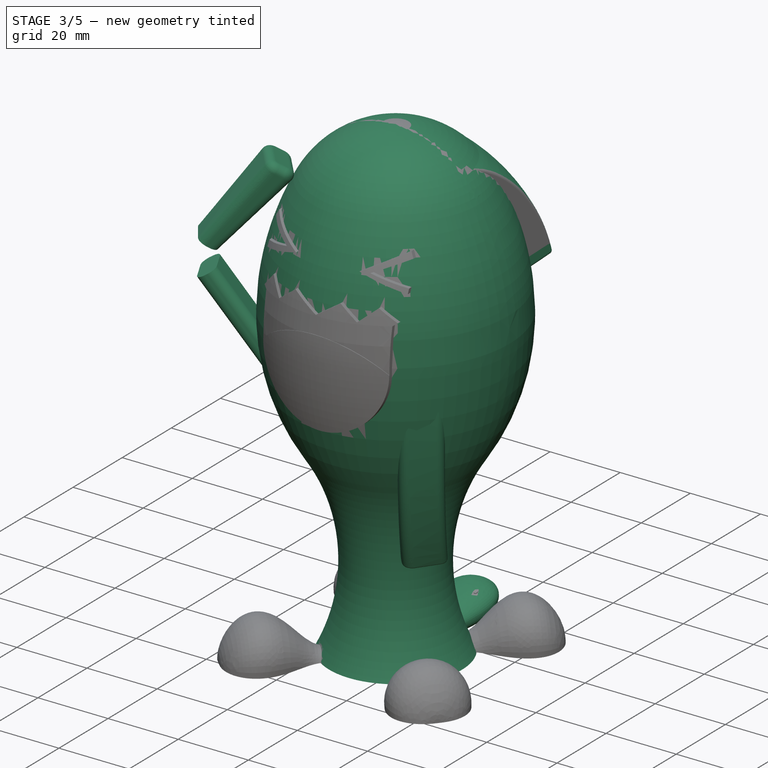
[diagram: stage 3 of 5 — iso view after this stage's code; geometry added in this stage tinted green]
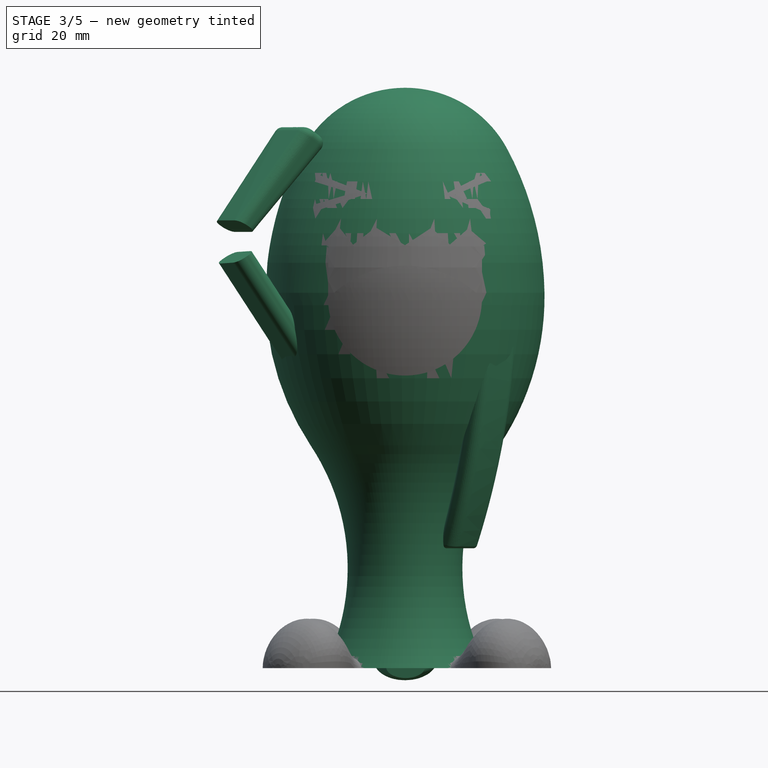
[diagram: stage 3 of 5 — front view after this stage's code; geometry added in this stage tinted green]
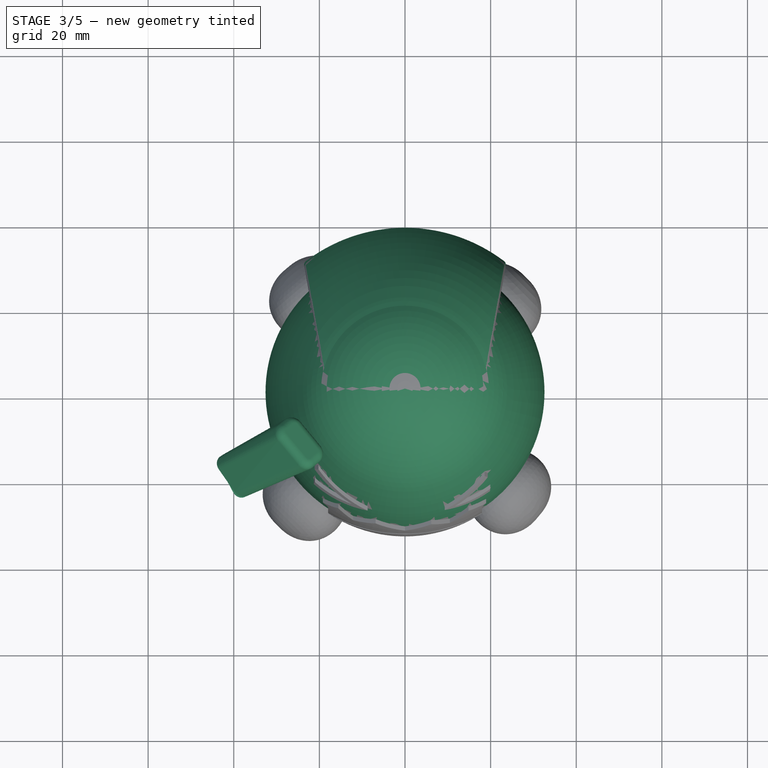
[diagram: stage 3 of 5 — top view after this stage's code; geometry added in this stage tinted green]
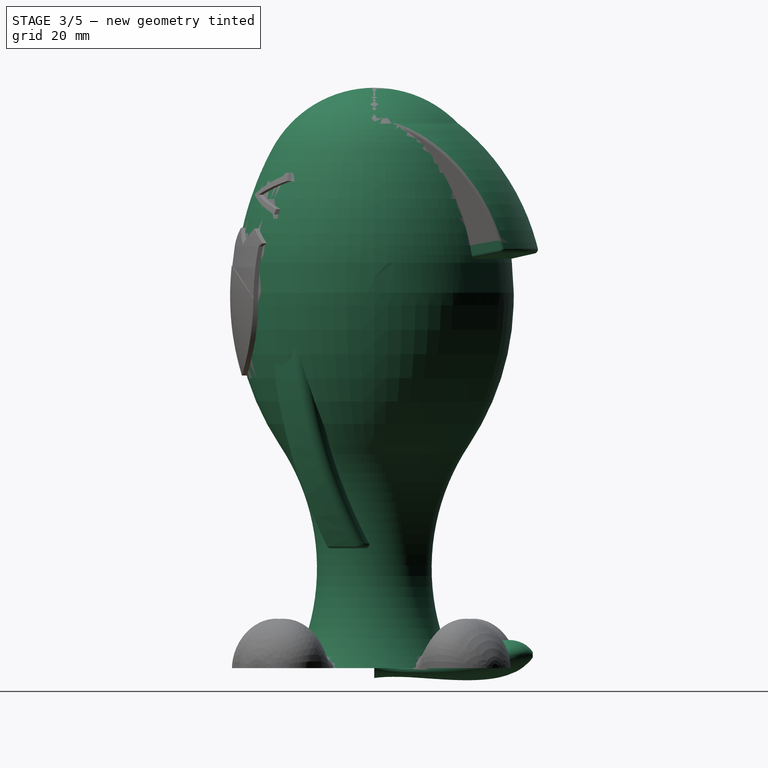
[diagram: stage 3 of 5 — right view after this stage's code; geometry added in this stage tinted green]
FEATURE [App::Part] Part002  label="body"
  Group = -> [Fillet005,Fillet004,Fillet003,Fillet006,Loft006,Loft005,Loft007,Loft008,Body001,Body,Cut,Sketch024,Sketch019,Sketch023,Sketch042,Sketch021,Extrude003,Sketch029,Sketch031,Sketch025,Sketch027,Sketch028,Sketch026,Sketch030,Sketch032,Sketch036,Sketch039,Sketch037,Sketch035,Sketch034,Sketch033,Sketch038,Sketch040,Fusion]
  Origin = -> Origin004
FEATURE [App::Part] Part003  label="mouse"
  Group = -> [Extrude001,Sketch014,Clone001,Common001]
  Origin = -> Origin005
FEATURE [App::Part] Part004  label="tangue"
  Group = -> [Clone002,Extrude002,Sketch015,Common002]
  Origin = -> Origin006
FEATURE [App::Part] Part005  label="eye"
  Group = -> [Clone,Extrude,Sketch012,Common]
  Origin = -> Origin007
FEATURE [Part::Part2DObjectPython] Ellipse  # Draft 2D object (typed FeaturePython)
  Area = 0
  FirstAngle = 0
  LastAngle = 0
  MajorRadius = 4.5
  MakeFace = false
  MinorRadius = 2.5
  Placement = pos=(0.12619,0,0.187771) rot=(1,0,0;1.5708rad)
FEATURE [Part::Part2DObjectPython] Ellipse001  # Draft 2D object (typed FeaturePython)
  Area = 0
  FirstAngle = 0
  LastAngle = 0
  MajorRadius = 5.54876
  MakeFace = false
  MinorRadius = 3.01273
  Placement = pos=(-0.04115,18,0.28) rot=(1,0,0;1.5708rad)
FEATURE [Part::Part2DObjectPython] Ellipse002  # Draft 2D object (typed FeaturePython)
  Area = 0
  FirstAngle = 0
  LastAngle = 0
  MajorRadius = 6.6547
  MakeFace = false
  MinorRadius = 3.83265
  Placement = pos=(0.11,32,2.53) rot=(1,0,0;1.5708rad)
FEATURE [Part::Part2DObjectPython] Ellipse003  # Draft 2D object (typed FeaturePython)
  Area = 0
  FirstAngle = 0
  LastAngle = 0
  MajorRadius = 1.43009
  MakeFace = false
  MinorRadius = 0.552969
  Placement = pos=(0.07326,37,3.04656) rot=(1,0,0;1.5708rad)
FEATURE [Part::Loft] Loft009
  Closed = false
  MaxDegree = 5
  Ruled = false
  Sections = -> [Ellipse,Ellipse001,Ellipse002,Ellipse003]
  Solid = true
FEATURE [Part::FeaturePython] Clone003  label="Loft010"  # Draft clone (typed FeaturePython)
  AttacherType = Attacher::AttachEngine3D
  Fuse = false
  Objects = -> [Loft009]
  Placement = pos=(0,0,0.2) rot=(0,0,1;0rad)
  Scale = (1,1,1)
FEATURE [Part::FeaturePython] Clone004  label="Loft011"  # Draft clone (typed FeaturePython)
  AttacherType = Attacher::AttachEngine3D
  Fuse = false
  Objects = -> [Loft009]
  Scale = (1,1,1)
FEATURE [Sketcher::SketchObject] Sketch044
  ArcFitTolerance = 1e-06
  FullyConstrained = false
  MakeInternals = false
  Placement = pos=(0,0,3) rot=(0,0,1;0rad)
  sketch-geometry (10):
    g0: Ellipse CenterX=-3.84428 CenterY=27.2171 CenterZ=0 NormalX=0 NormalY=0 NormalZ=1 MajorRadius=0.690708 MinorRadius=0.386873 AngleXU=1.5708
    g1: LineSegment [constr] StartX=-3.84428 StartY=27.9078 StartZ=0 EndX=-3.84428 EndY=26.5264 EndZ=0
    g2: LineSegment [constr] StartX=-4.23116 StartY=27.2171 StartZ=0 EndX=-3.45741 EndY=27.2171 EndZ=0
    g3: GeomPoint [constr] X=-3.84428 Y=27.7893 Z=0
    g4: GeomPoint [constr] X=-3.84428 Y=26.6449 Z=0
    g5: Ellipse CenterX=3.84428 CenterY=27.2171 CenterZ=0 NormalX=0 NormalY=0 NormalZ=1 MajorRadius=0.690708 MinorRadius=0.386873 AngleXU=1.5708
    g6: LineSegment [constr] StartX=3.84428 StartY=27.9078 StartZ=0 EndX=3.84428 EndY=26.5264 EndZ=0
    g7: LineSegment [constr] StartX=4.23116 StartY=27.2171 StartZ=0 EndX=3.45741 EndY=27.2171 EndZ=0
    g8: GeomPoint [constr] X=3.84428 Y=27.7893 Z=0
    g9: GeomPoint [constr] X=3.84428 Y=26.6449 Z=0
  constraints (2):
    c: InternalAlignment(g1-g4 -> g0) x4
    c: InternalAlignment(g6-g9 -> g5) x4
FEATURE [Part::Extrusion] Extrude005
  Base = -> Sketch044
  Dir = (0,0,1)
  DirMode = 2
  FaceMakerClass = Part::FaceMakerBullseye
  FaceMakerMode = 3
  LengthFwd = 40
  LengthRev = 0
  Solid = true
  Symmetric = false
FEATURE [Part::FeaturePython] Clone005  label="Loft012"  # Draft clone (typed FeaturePython)
  AttacherType = Attacher::AttachEngine3D
  Fuse = false
  Objects = -> [Loft009]
  Placement = pos=(0,0,0.4) rot=(0,0,1;0rad)
  Scale = (1,1,1)
FEATURE [Part::MultiCommon] Common004
  Refine = true
  Shapes = -> [Extrude005,Clone005]
FEATURE [Part::FeaturePython] Clone006  label="Loft013"  # Draft clone (typed FeaturePython)
  AttacherType = Attacher::AttachEngine3D
  Fuse = false
  Objects = -> [Loft009]
  Scale = (1,1,1)
FEATURE [Part::Cut] Cut002  label="Cut003"
  Base = -> Common004
  Refine = true
  Tool = -> Clone006
FEATURE [Sketcher::SketchObject] Sketch046
  ArcFitTolerance = 1e-06
  FullyConstrained = false
  MakeInternals = false
  sketch-geometry (13):
    g0: LineSegment StartX=-3.19293 StartY=-2.6774 StartZ=0 EndX=3.19293 EndY=-2.6774 EndZ=0
    g1: LineSegment StartX=5.50674 StartY=-0.363597 StartZ=0 EndX=5.50674 EndY=0.363597 EndZ=0
    g2: LineSegment StartX=3.19293 StartY=2.6774 StartZ=0 EndX=-3.19293 EndY=2.6774 EndZ=0
    g3: LineSegment StartX=-5.50674 StartY=0.363597 StartZ=0 EndX=-5.50674 EndY=-0.363597 EndZ=0
    g4: GeomPoint [constr] X=0 Y=0 Z=0
    g5: ArcOfCircle CenterX=3.19293 CenterY=0.363597 CenterZ=0 NormalX=0 NormalY=0 NormalZ=1 AngleXU=0 Radius=2.3138 StartAngle=0 EndAngle=1.5708
    g6: GeomPoint [constr] X=5.50674 Y=2.6774 Z=0
    g7: ArcOfCircle CenterX=3.19293 CenterY=-0.363597 CenterZ=0 NormalX=0 NormalY=0 NormalZ=1 AngleXU=0 Radius=2.3138 StartAngle=4.71239 EndAngle=6.28319
    g8: GeomPoint [constr] X=5.50674 Y=-2.6774 Z=0
    g9: ArcOfCircle CenterX=-3.19293 CenterY=-0.363597 CenterZ=0 NormalX=0 NormalY=0 NormalZ=1 AngleXU=0 Radius=2.3138 StartAngle=3.14159 EndAngle=4.71239
    g10: GeomPoint [constr] X=-5.50674 Y=-2.6774 Z=0
    g11: ArcOfCircle CenterX=-3.19293 CenterY=0.363597 CenterZ=0 NormalX=0 NormalY=0 NormalZ=1 AngleXU=0 Radius=2.3138 StartAngle=1.5708 EndAngle=3.14159
    g12: GeomPoint [constr] X=-5.50674 Y=2.6774 Z=0
  constraints (25):
    c: Horizontal(g0)
    c: Horizontal(g2)
    c: Vertical(g1)
    c: Vertical(g3)
    c: Symmetric(g6,g10,g4)
    c: Coincident(g4,g-1)
    c: PointOnObject(g6,g1)
    c: PointOnObject(g6,g2)
    c: Tangent(g1,g5) = -1.5708
    c: Tangent(g2,g5) = -1.5708
    c: PointOnObject(g8,g1)
    c: PointOnObject(g8,g0)
    c: Tangent(g1,g7) = -1.5708
    c: Tangent(g0,g7) = -1.5708
    c: PointOnObject(g10,g0)
    c: PointOnObject(g10,g3)
    c: Tangent(g0,g9) = -1.5708
    c: Tangent(g3,g9) = -1.5708
    c: PointOnObject(g12,g3)
    c: PointOnObject(g12,g2)
    c: Tangent(g3,g11) = -1.5708
    c: Tangent(g2,g11) = -1.5708
    c: Equal(g11,g5)
    c: Equal(g5,g7)
    c: Equal(g7,g9)
FEATURE [Part::Face] Face008
  FaceMakerClass = Part::FaceMakerBullseye
  Placement = pos=(21.3567,-19.5963,81.5) rot=(0,0,1;0.785398rad)
  Sources = -> [Sketch046]
FEATURE [Sketcher::SketchObject] Sketch047
  ArcFitTolerance = 1e-06
  FullyConstrained = false
  MakeInternals = false
  sketch-geometry (13):
    g0: LineSegment StartX=-3.19293 StartY=-2.6774 StartZ=0 EndX=3.19293 EndY=-2.6774 EndZ=0
    g1: LineSegment StartX=5.50674 StartY=-0.363597 StartZ=0 EndX=5.50674 EndY=0.363597 EndZ=0
    g2: LineSegment StartX=3.19293 StartY=2.6774 StartZ=0 EndX=-3.19293 EndY=2.6774 EndZ=0
    g3: LineSegment StartX=-5.50674 StartY=0.363597 StartZ=0 EndX=-5.50674 EndY=-0.363597 EndZ=0
    g4: GeomPoint [constr] X=0 Y=0 Z=0
    g5: ArcOfCircle CenterX=3.19293 CenterY=0.363597 CenterZ=0 NormalX=0 NormalY=0 NormalZ=1 AngleXU=0 Radius=2.3138 StartAngle=0 EndAngle=1.5708
    g6: GeomPoint [constr] X=5.50674 Y=2.6774 Z=0
    g7: ArcOfCircle CenterX=3.19293 CenterY=-0.363597 CenterZ=0 NormalX=0 NormalY=0 NormalZ=1 AngleXU=0 Radius=2.3138 StartAngle=4.71239 EndAngle=6.28319
    g8: GeomPoint [constr] X=5.50674 Y=-2.6774 Z=0
    g9: ArcOfCircle CenterX=-3.19293 CenterY=-0.363597 CenterZ=0 NormalX=0 NormalY=0 NormalZ=1 AngleXU=0 Radius=2.3138 StartAngle=3.14159 EndAngle=4.71239
    g10: GeomPoint [constr] X=-5.50674 Y=-2.6774 Z=0
    g11: ArcOfCircle CenterX=-3.19293 CenterY=0.363597 CenterZ=0 NormalX=0 NormalY=0 NormalZ=1 AngleXU=0 Radius=2.3138 StartAngle=1.5708 EndAngle=3.14159
    g12: GeomPoint [constr] X=-5.50674 Y=2.6774 Z=0
  constraints (25):
    c: Horizontal(g0)
    c: Horizontal(g2)
    c: Vertical(g1)
    c: Vertical(g3)
    c: Symmetric(g6,g10,g4)
    c: Coincident(g4,g-1)
    c: PointOnObject(g6,g1)
    c: PointOnObject(g6,g2)
    c: Tangent(g1,g5) = -1.5708
    c: Tangent(g2,g5) = -1.5708
    c: PointOnObject(g8,g1)
    c: PointOnObject(g8,g0)
    c: Tangent(g1,g7) = -1.5708
    c: Tangent(g0,g7) = -1.5708
    c: PointOnObject(g10,g0)
    c: PointOnObject(g10,g3)
    c: Tangent(g0,g9) = -1.5708
    c: Tangent(g3,g9) = -1.5708
    c: PointOnObject(g12,g3)
    c: PointOnObject(g12,g2)
    c: Tangent(g3,g11) = -1.5708
    c: Tangent(g2,g11) = -1.5708
    c: Equal(g11,g5)
    c: Equal(g5,g7)
    c: Equal(g7,g9)
FEATURE [Part::Face] Face009
  FaceMakerClass = Part::FaceMakerBullseye
  Placement = pos=(19.0566,-16.8155,59) rot=(0,0,-1;5.49779rad)
  Sources = -> [Sketch047]
FEATURE [Sketcher::SketchObject] Sketch048
  ArcFitTolerance = 1e-06
  FullyConstrained = false
  MakeInternals = false
  sketch-geometry (13):
    g0: LineSegment StartX=-3.19293 StartY=-2.6774 StartZ=0 EndX=3.19293 EndY=-2.6774 EndZ=0
    g1: LineSegment StartX=5.50674 StartY=-0.363597 StartZ=0 EndX=5.50674 EndY=0.363597 EndZ=0
    g2: LineSegment StartX=3.19293 StartY=2.6774 StartZ=0 EndX=-3.19293 EndY=2.6774 EndZ=0
    g3: LineSegment StartX=-5.50674 StartY=0.363597 StartZ=0 EndX=-5.50674 EndY=-0.363597 EndZ=0
    g4: GeomPoint [constr] X=0 Y=0 Z=0
    g5: ArcOfCircle CenterX=3.19293 CenterY=0.363597 CenterZ=0 NormalX=0 NormalY=0 NormalZ=1 AngleXU=0 Radius=2.3138 StartAngle=0 EndAngle=1.5708
    g6: GeomPoint [constr] X=5.50674 Y=2.6774 Z=0
    g7: ArcOfCircle CenterX=3.19293 CenterY=-0.363597 CenterZ=0 NormalX=0 NormalY=0 NormalZ=1 AngleXU=0 Radius=2.3138 StartAngle=4.71239 EndAngle=6.28319
    g8: GeomPoint [constr] X=5.50674 Y=-2.6774 Z=0
    g9: ArcOfCircle CenterX=-3.19293 CenterY=-0.363597 CenterZ=0 NormalX=0 NormalY=0 NormalZ=1 AngleXU=0 Radius=2.3138 StartAngle=3.14159 EndAngle=4.71239
    g10: GeomPoint [constr] X=-5.50674 Y=-2.6774 Z=0
    g11: ArcOfCircle CenterX=-3.19293 CenterY=0.363597 CenterZ=0 NormalX=0 NormalY=0 NormalZ=1 AngleXU=0 Radius=2.3138 StartAngle=1.5708 EndAngle=3.14159
    g12: GeomPoint [constr] X=-5.50674 Y=2.6774 Z=0
  constraints (25):
    c: Horizontal(g0)
    c: Horizontal(g2)
    c: Vertical(g1)
    c: Vertical(g3)
    c: Symmetric(g6,g10,g4)
    c: Coincident(g4,g-1)
    c: PointOnObject(g6,g1)
    c: PointOnObject(g6,g2)
    c: Tangent(g1,g5) = -1.5708
    c: Tangent(g2,g5) = -1.5708
    c: PointOnObject(g8,g1)
    c: PointOnObject(g8,g0)
    c: Tangent(g1,g7) = -1.5708
    c: Tangent(g0,g7) = -1.5708
    c: PointOnObject(g10,g0)
    c: PointOnObject(g10,g3)
    c: Tangent(g0,g9) = -1.5708
    c: Tangent(g3,g9) = -1.5708
    c: PointOnObject(g12,g3)
    c: PointOnObject(g12,g2)
    c: Tangent(g3,g11) = -1.5708
    c: Tangent(g2,g11) = -1.5708
    c: Equal(g11,g5)
    c: Equal(g5,g7)
    c: Equal(g7,g9)
FEATURE [Part::Face] Face010
  FaceMakerClass = Part::FaceMakerBullseye
  Placement = pos=(12.1647,-5.58511,28) rot=(0,0,1;0.959931rad)
  Sources = -> [Sketch048]
FEATURE [Part::Loft] Loft010  label="Loft018"
  Closed = false
  MaxDegree = 5
  Ruled = false
  Sections = -> [Face008,Face009,Face010]
  Solid = true
FEATURE [Part::Fillet] Fillet007
  Base = -> Loft010
  EdgeLinks = -> Loft010 [Edge1]
  Edges = 1 edges r=2: [Edge1]
FEATURE [Part::Fillet] Fillet008
  Base = -> Fillet007
  EdgeLinks = -> Fillet007 [Edge3]
  Edges = 1 edges r=1: [Edge3]
FEATURE [App::Part] Part008  label="left_arm001"
  Group = -> [Fillet007,Sketch046,Sketch047,Sketch048,Face009,Face010,Loft010,Face008,Fillet008]
  Origin = -> Origin012
FEATURE [Sketcher::SketchObject] Sketch049
  ArcFitTolerance = 1e-06
  FullyConstrained = false
  MakeInternals = false
  sketch-geometry (13):
    g0: LineSegment StartX=-3.19293 StartY=-2.6774 StartZ=0 EndX=3.19293 EndY=-2.6774 EndZ=0
    g1: LineSegment StartX=5.50674 StartY=-0.363597 StartZ=0 EndX=5.50674 EndY=0.363597 EndZ=0
    g2: LineSegment StartX=3.19293 StartY=2.6774 StartZ=0 EndX=-3.19293 EndY=2.6774 EndZ=0
    g3: LineSegment StartX=-5.50674 StartY=0.363597 StartZ=0 EndX=-5.50674 EndY=-0.363597 EndZ=0
    g4: GeomPoint [constr] X=0 Y=0 Z=0
    g5: ArcOfCircle CenterX=3.19293 CenterY=0.363597 CenterZ=0 NormalX=0 NormalY=0 NormalZ=1 AngleXU=0 Radius=2.3138 StartAngle=0 EndAngle=1.5708
    g6: GeomPoint [constr] X=5.50674 Y=2.6774 Z=0
    g7: ArcOfCircle CenterX=3.19293 CenterY=-0.363597 CenterZ=0 NormalX=0 NormalY=0 NormalZ=1 AngleXU=0 Radius=2.3138 StartAngle=4.71239 EndAngle=6.28319
    g8: GeomPoint [constr] X=5.50674 Y=-2.6774 Z=0
    g9: ArcOfCircle CenterX=-3.19293 CenterY=-0.363597 CenterZ=0 NormalX=0 NormalY=0 NormalZ=1 AngleXU=0 Radius=2.3138 StartAngle=3.14159 EndAngle=4.71239
    g10: GeomPoint [constr] X=-5.50674 Y=-2.6774 Z=0
    g11: ArcOfCircle CenterX=-3.19293 CenterY=0.363597 CenterZ=0 NormalX=0 NormalY=0 NormalZ=1 AngleXU=0 Radius=2.3138 StartAngle=1.5708 EndAngle=3.14159
    g12: GeomPoint [constr] X=-5.50674 Y=2.6774 Z=0
  constraints (25):
    c: Horizontal(g0)
    c: Horizontal(g2)
    c: Vertical(g1)
    c: Vertical(g3)
    c: Symmetric(g6,g10,g4)
    c: Coincident(g4,g-1)
    c: PointOnObject(g6,g1)
    c: PointOnObject(g6,g2)
    c: Tangent(g1,g5) = -1.5708
    c: Tangent(g2,g5) = -1.5708
    c: PointOnObject(g8,g1)
    c: PointOnObject(g8,g0)
    c: Tangent(g1,g7) = -1.5708
    c: Tangent(g0,g7) = -1.5708
    c: PointOnObject(g10,g0)
    c: PointOnObject(g10,g3)
    c: Tangent(g0,g9) = -1.5708
    c: Tangent(g3,g9) = -1.5708
    c: PointOnObject(g12,g3)
    c: PointOnObject(g12,g2)
    c: Tangent(g3,g11) = -1.5708
    c: Tangent(g2,g11) = -1.5708
    c: Equal(g11,g5)
    c: Equal(g5,g7)
    c: Equal(g7,g9)
FEATURE [Part::Face] Face011
  FaceMakerClass = Part::FaceMakerBullseye
  Placement = pos=(-22.1121,-11.6117,69) rot=(-0.552483,0.318976,0.770076;4.99653rad)
  Sources = -> [Sketch049]
FEATURE [Sketcher::SketchObject] Sketch050
  ArcFitTolerance = 1e-06
  FullyConstrained = false
  MakeInternals = false
  sketch-geometry (13):
    g0: LineSegment StartX=-3.19293 StartY=-2.6774 StartZ=0 EndX=3.19293 EndY=-2.6774 EndZ=0
    g1: LineSegment StartX=5.50674 StartY=-0.363597 StartZ=0 EndX=5.50674 EndY=0.363597 EndZ=0
    g2: LineSegment StartX=3.19293 StartY=2.6774 StartZ=0 EndX=-3.19293 EndY=2.6774 EndZ=0
    g3: LineSegment StartX=-5.50674 StartY=0.363597 StartZ=0 EndX=-5.50674 EndY=-0.363597 EndZ=0
    g4: GeomPoint [constr] X=0 Y=0 Z=0
    g5: ArcOfCircle CenterX=3.19293 CenterY=0.363597 CenterZ=0 NormalX=0 NormalY=0 NormalZ=1 AngleXU=0 Radius=2.3138 StartAngle=0 EndAngle=1.5708
    g6: GeomPoint [constr] X=5.50674 Y=2.6774 Z=0
    g7: ArcOfCircle CenterX=3.19293 CenterY=-0.363597 CenterZ=0 NormalX=0 NormalY=0 NormalZ=1 AngleXU=0 Radius=2.3138 StartAngle=4.71239 EndAngle=6.28319
    g8: GeomPoint [constr] X=5.50674 Y=-2.6774 Z=0
    g9: ArcOfCircle CenterX=-3.19293 CenterY=-0.363597 CenterZ=0 NormalX=0 NormalY=0 NormalZ=1 AngleXU=0 Radius=2.3138 StartAngle=3.14159 EndAngle=4.71239
    g10: GeomPoint [constr] X=-5.50674 Y=-2.6774 Z=0
    g11: ArcOfCircle CenterX=-3.19293 CenterY=0.363597 CenterZ=0 NormalX=0 NormalY=0 NormalZ=1 AngleXU=0 Radius=2.3138 StartAngle=1.5708 EndAngle=3.14159
    g12: GeomPoint [constr] X=-5.50674 Y=2.6774 Z=0
  constraints (25):
    c: Horizontal(g0)
    c: Horizontal(g2)
    c: Vertical(g1)
    c: Vertical(g3)
    c: Symmetric(g6,g10,g4)
    c: Coincident(g4,g-1)
    c: PointOnObject(g6,g1)
    c: PointOnObject(g6,g2)
    c: Tangent(g1,g5) = -1.5708
    c: Tangent(g2,g5) = -1.5708
    c: PointOnObject(g8,g1)
    c: PointOnObject(g8,g0)
    c: Tangent(g1,g7) = -1.5708
    c: Tangent(g0,g7) = -1.5708
    c: PointOnObject(g10,g0)
    c: PointOnObject(g10,g3)
    c: Tangent(g0,g9) = -1.5708
    c: Tangent(g3,g9) = -1.5708
    c: PointOnObject(g12,g3)
    c: PointOnObject(g12,g2)
    c: Tangent(g3,g11) = -1.5708
    c: Tangent(g2,g11) = -1.5708
    c: Equal(g11,g5)
    c: Equal(g5,g7)
    c: Equal(g7,g9)
FEATURE [Part::Face] Face012
  FaceMakerClass = Part::FaceMakerBullseye
  Placement = pos=(-39.6309,-19.5711,95.9659) rot=(0.388308,-0.264436,-0.882774;1.18311rad)
  Sources = -> [Sketch050]
FEATURE [Part::Loft] Loft011  label="Loft019"
  Closed = false
  MaxDegree = 5
  Ruled = false
  Sections = -> [Face011,Face012]
  Solid = true
FEATURE [Sketcher::SketchObject] Sketch051
  ArcFitTolerance = 1e-06
  FullyConstrained = false
  MakeInternals = false
  sketch-geometry (13):
    g0: LineSegment StartX=-3.65706 StartY=-3.99514 StartZ=0 EndX=3.65706 EndY=-3.99514 EndZ=0
    g1: LineSegment StartX=6.488 StartY=-1.16419 StartZ=0 EndX=6.488 EndY=1.16419 EndZ=0
    g2: LineSegment StartX=3.65706 StartY=3.99514 StartZ=0 EndX=-3.65706 EndY=3.99514 EndZ=0
    g3: LineSegment StartX=-6.488 StartY=1.16419 StartZ=0 EndX=-6.488 EndY=-1.16419 EndZ=0
    g4: GeomPoint [constr] X=0 Y=0 Z=0
    g5: ArcOfCircle CenterX=3.65706 CenterY=1.16419 CenterZ=0 NormalX=0 NormalY=0 NormalZ=1 AngleXU=0 Radius=2.83095 StartAngle=0 EndAngle=1.5708
    g6: GeomPoint [constr] X=6.488 Y=3.99514 Z=0
    g7: ArcOfCircle CenterX=3.65706 CenterY=-1.16419 CenterZ=0 NormalX=0 NormalY=0 NormalZ=1 AngleXU=0 Radius=2.83095 StartAngle=4.71239 EndAngle=6.28319
    g8: GeomPoint [constr] X=6.488 Y=-3.99514 Z=0
    g9: ArcOfCircle CenterX=-3.65706 CenterY=-1.16419 CenterZ=0 NormalX=0 NormalY=0 NormalZ=1 AngleXU=0 Radius=2.83095 StartAngle=3.14159 EndAngle=4.71239
    g10: GeomPoint [constr] X=-6.488 Y=-3.99514 Z=0
    g11: ArcOfCircle CenterX=-3.65706 CenterY=1.16419 CenterZ=0 NormalX=0 NormalY=0 NormalZ=1 AngleXU=0 Radius=2.83095 StartAngle=1.5708 EndAngle=3.14159
    g12: GeomPoint [constr] X=-6.488 Y=3.99514 Z=0
  constraints (25):
    c: Horizontal(g0)
    c: Horizontal(g2)
    c: Vertical(g1)
    c: Vertical(g3)
    c: Symmetric(g6,g10,g4)
    c: Coincident(g4,g-1)
    c: PointOnObject(g6,g1)
    c: PointOnObject(g6,g2)
    c: Tangent(g1,g5) = -1.5708
    c: Tangent(g2,g5) = -1.5708
    c: PointOnObject(g8,g1)
    c: PointOnObject(g8,g0)
    c: Tangent(g1,g7) = -1.5708
    c: Tangent(g0,g7) = -1.5708
    c: PointOnObject(g10,g0)
    c: PointOnObject(g10,g3)
    c: Tangent(g0,g9) = -1.5708
    c: Tangent(g3,g9) = -1.5708
    c: PointOnObject(g12,g3)
    c: PointOnObject(g12,g2)
    c: Tangent(g3,g11) = -1.5708
    c: Tangent(g2,g11) = -1.5708
    c: Equal(g11,g5)
    c: Equal(g5,g7)
    c: Equal(g7,g9)
FEATURE [Part::Face] Face013
  FaceMakerClass = Part::FaceMakerBullseye
  Placement = pos=(-23.7111,-12.1236,125) rot=(-0.485298,0.226298,-0.844556;1.00896rad)
  Sources = -> [Sketch051]
FEATURE [Sketcher::SketchObject] Sketch052
  ArcFitTolerance = 1e-06
  FullyConstrained = false
  MakeInternals = false
  sketch-geometry (13):
    g0: LineSegment StartX=-3.19293 StartY=-2.6774 StartZ=0 EndX=3.19293 EndY=-2.6774 EndZ=0
    g1: LineSegment StartX=5.50674 StartY=-0.363597 StartZ=0 EndX=5.50674 EndY=0.363597 EndZ=0
    g2: LineSegment StartX=3.19293 StartY=2.6774 StartZ=0 EndX=-3.19293 EndY=2.6774 EndZ=0
    g3: LineSegment StartX=-5.50674 StartY=0.363597 StartZ=0 EndX=-5.50674 EndY=-0.363597 EndZ=0
    g4: GeomPoint [constr] X=0 Y=0 Z=0
    g5: ArcOfCircle CenterX=3.19293 CenterY=0.363597 CenterZ=0 NormalX=0 NormalY=0 NormalZ=1 AngleXU=0 Radius=2.3138 StartAngle=0 EndAngle=1.5708
    g6: GeomPoint [constr] X=5.50674 Y=2.6774 Z=0
    g7: ArcOfCircle CenterX=3.19293 CenterY=-0.363597 CenterZ=0 NormalX=0 NormalY=0 NormalZ=1 AngleXU=0 Radius=2.3138 StartAngle=4.71239 EndAngle=6.28319
    g8: GeomPoint [constr] X=5.50674 Y=-2.6774 Z=0
    g9: ArcOfCircle CenterX=-3.19293 CenterY=-0.363597 CenterZ=0 NormalX=0 NormalY=0 NormalZ=1 AngleXU=0 Radius=2.3138 StartAngle=3.14159 EndAngle=4.71239
    g10: GeomPoint [constr] X=-5.50674 Y=-2.6774 Z=0
    g11: ArcOfCircle CenterX=-3.19293 CenterY=0.363597 CenterZ=0 NormalX=0 NormalY=0 NormalZ=1 AngleXU=0 Radius=2.3138 StartAngle=1.5708 EndAngle=3.14159
    g12: GeomPoint [constr] X=-5.50674 Y=2.6774 Z=0
  constraints (25):
    c: Horizontal(g0)
    c: Horizontal(g2)
    c: Vertical(g1)
    c: Vertical(g3)
    c: Symmetric(g6,g10,g4)
    c: Coincident(g4,g-1)
    c: PointOnObject(g6,g1)
    c: PointOnObject(g6,g2)
    c: Tangent(g1,g5) = -1.5708
    c: Tangent(g2,g5) = -1.5708
    c: PointOnObject(g8,g1)
    c: PointOnObject(g8,g0)
    c: Tangent(g1,g7) = -1.5708
    c: Tangent(g0,g7) = -1.5708
    c: PointOnObject(g10,g0)
    c: PointOnObject(g10,g3)
    c: Tangent(g0,g9) = -1.5708
    c: Tangent(g3,g9) = -1.5708
    c: PointOnObject(g12,g3)
    c: PointOnObject(g12,g2)
    c: Tangent(g3,g11) = -1.5708
    c: Tangent(g2,g11) = -1.5708
    c: Equal(g11,g5)
    c: Equal(g5,g7)
    c: Equal(g7,g9)
FEATURE [Part::Face] Face014
  FaceMakerClass = Part::FaceMakerBullseye
  Placement = pos=(-39.7471,-19.6525,103.237) rot=(-0.445197,0.231755,-0.864921;1.08358rad)
  Sources = -> [Sketch052]
FEATURE [Part::Loft] Loft013  label="Loft021"
  Closed = false
  MaxDegree = 5
  Ruled = false
  Sections = -> [Face014,Face013]
  Solid = true
FEATURE [Part::Fillet] Fillet009
  Base = -> Loft013
  EdgeLinks = -> Loft013 [Edge3]
  Edges = 1 edges r=2: [Edge3]
FEATURE [Part::Fillet] Fillet013
  Base = -> Fillet012
  EdgeLinks = -> Fillet012 [Edge1]
  Edges = 1 edges r=0.5: [Edge1]
  Placement = pos=(0,0,-3) rot=(0,0,1;0rad)
FEATURE [Part::MultiFuse] Fusion001
  Refine = true
  Shapes = -> [Body002,Loft014,Loft015,Loft016,Loft017,Fillet013]
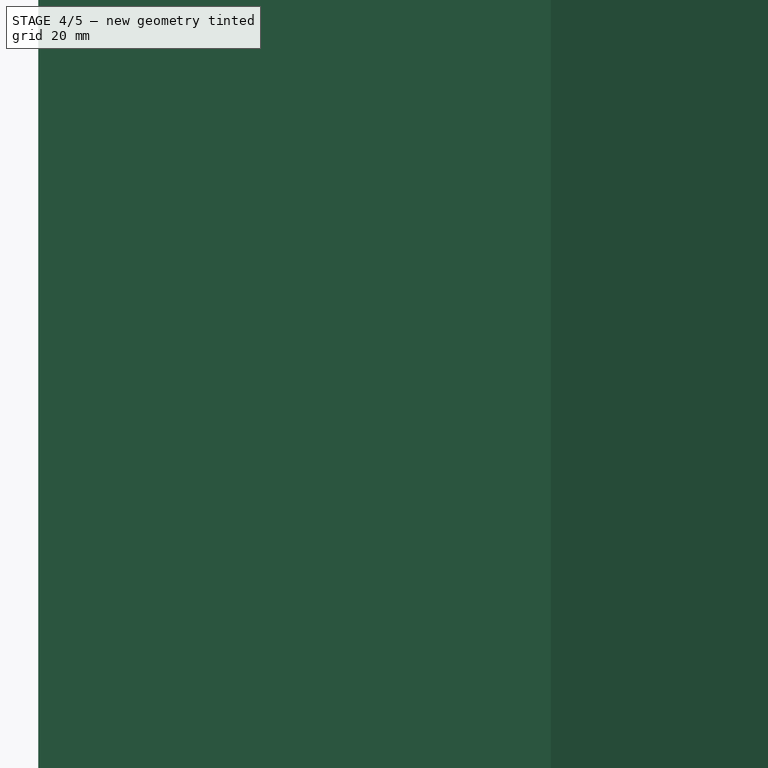
[diagram: stage 4 of 5 — iso view after this stage's code; geometry added in this stage tinted green]
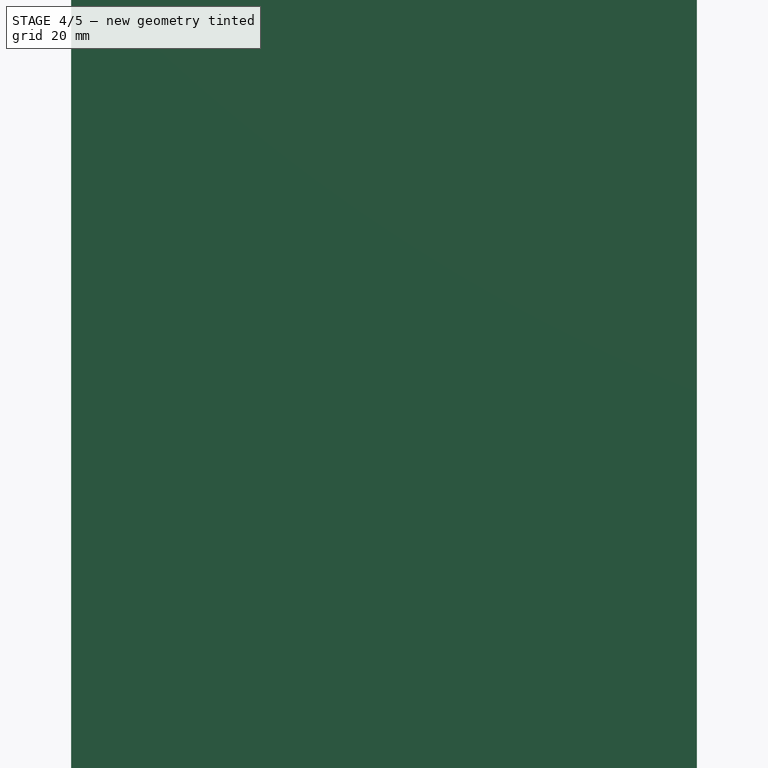
[diagram: stage 4 of 5 — front view after this stage's code; geometry added in this stage tinted green]
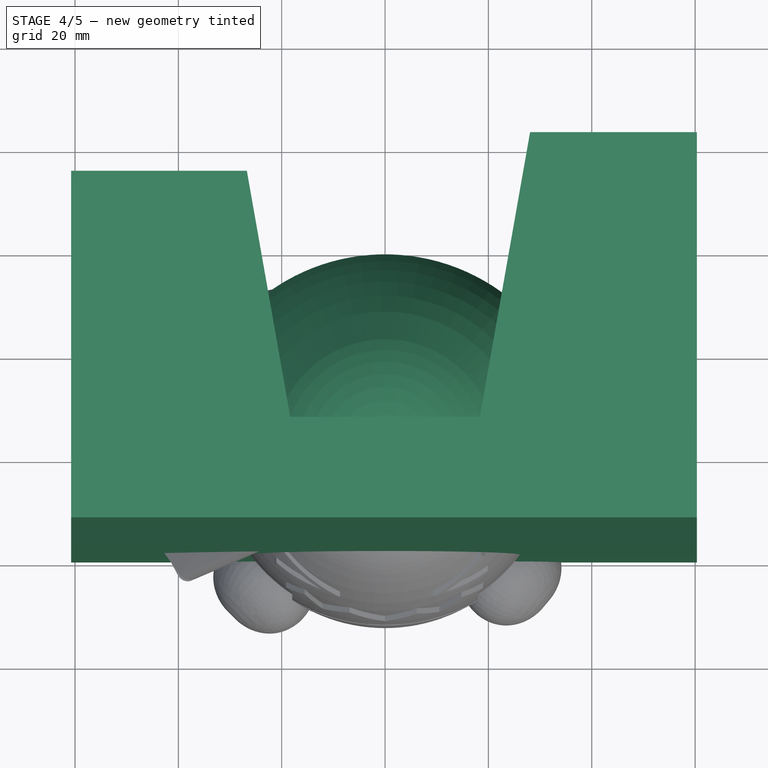
[diagram: stage 4 of 5 — top view after this stage's code; geometry added in this stage tinted green]
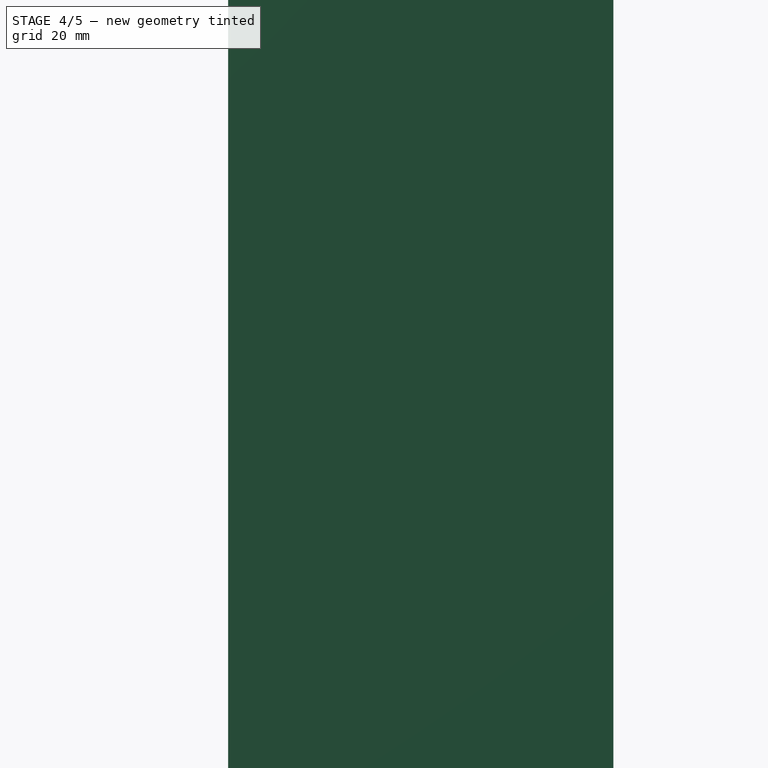
[diagram: stage 4 of 5 — right view after this stage's code; geometry added in this stage tinted green]
FEATURE [Sketcher::SketchObject] Sketch012
  ArcFitTolerance = 1e-06
  FullyConstrained = false
  MakeInternals = false
  Placement = pos=(0,0,0) rot=(1,0,0;1.5708rad)
  sketch-geometry (13):
    g0: LineSegment StartX=-20.1977 StartY=115.267 StartZ=0 EndX=-8.74047 EndY=110.839 EndZ=0
    g1: LineSegment StartX=-8.74047 StartY=110.839 StartZ=0 EndX=-21.3076 EndY=106.637 EndZ=0
    g2: LineSegment StartX=18.5995 StartY=115.452 StartZ=0 EndX=9.27716 EndY=110.699 EndZ=0
    g3: LineSegment StartX=9.27716 StartY=110.699 StartZ=0 EndX=19.8791 EndY=105.947 EndZ=0
    g4: LineSegment StartX=18.5995 StartY=115.452 StartZ=0 EndX=19.3274 EndY=113.773 EndZ=0
    g5: LineSegment StartX=19.3274 StartY=113.773 StartZ=0 EndX=11.6822 EndY=110.574 EndZ=0
    g6: LineSegment StartX=11.6822 StartY=110.574 StartZ=0 EndX=11.7336 EndY=110.574 EndZ=0
    g7: LineSegment StartX=11.7336 StartY=110.574 StartZ=0 EndX=19.9084 EndY=107.233 EndZ=0
    g8: LineSegment StartX=19.9084 StartY=107.233 StartZ=0 EndX=19.8791 EndY=105.947 EndZ=0
    g9: LineSegment StartX=-20.1977 StartY=115.267 StartZ=0 EndX=-21.1193 EndY=113.624 EndZ=0
    g10: LineSegment StartX=-21.1193 StartY=113.624 StartZ=0 EndX=-12.4163 EndY=110.936 EndZ=0
    g11: LineSegment StartX=-12.4163 StartY=110.936 StartZ=0 EndX=-21.0584 EndY=108.328 EndZ=0
    g12: LineSegment StartX=-21.0584 StartY=108.328 StartZ=0 EndX=-21.3076 EndY=106.637 EndZ=0
  constraints (14):
    c: Coincident(g1,g0)
    c: Coincident(g3,g2)
    c: Coincident(g4,g2)
    c: Coincident(g4,g5)
    c: Coincident(g5,g6)
    c: Horizontal(g6)
    c: Coincident(g6,g7)
    c: Coincident(g7,g8)
    c: Coincident(g8,g3)
    c: Coincident(g0,g9)
    c: Coincident(g9,g10)
    c: Coincident(g10,g11)
    c: Coincident(g11,g12)
    c: Coincident(g12,g1)
FEATURE [Part::Extrusion] Extrude
  Base = -> Sketch012
  Dir = (0,-1,2e-16)
  DirMode = 2
  FaceMakerClass = Part::FaceMakerBullseye
  FaceMakerMode = 3
  LengthFwd = 100
  LengthRev = 0
  Solid = true
  Symmetric = false
FEATURE [Sketcher::SketchObject] Sketch014
  ArcFitTolerance = 1e-06
  FullyConstrained = false
  MakeInternals = false
  Placement = pos=(0,0,0) rot=(1,0,0;1.5708rad)
  sketch-geometry (13):
    g0: LineSegment StartX=-19.1841 StartY=99.1166 StartZ=0 EndX=-15.573 EndY=103.202 EndZ=0
    g1: LineSegment StartX=-15.573 StartY=103.202 StartZ=0 EndX=-12.1165 EndY=98.911 EndZ=0
    g2: LineSegment StartX=-12.1165 StartY=98.911 StartZ=0 EndX=-6.87209 EndY=102.963 EndZ=0
    g3: LineSegment StartX=-6.87209 StartY=102.963 StartZ=0 EndX=0 EndY=98.7953 EndZ=0
    g4: LineSegment StartX=0 StartY=98.7953 StartZ=0 EndX=6.11962 EndY=102.844 EndZ=0
    g5: LineSegment StartX=6.11962 StartY=102.844 StartZ=0 EndX=10.4856 EndY=98.9559 EndZ=0
    g6: LineSegment StartX=10.4856 StartY=98.9559 StartZ=0 EndX=14.8205 EndY=102.725 EndZ=0
    g7: LineSegment StartX=14.8205 StartY=102.725 StartZ=0 EndX=18.9474 EndY=99.2237 EndZ=0
    g8: LineSegment StartX=-19.1841 StartY=99.1166 StartZ=0 EndX=-17.97 EndY=98.5275 EndZ=0
    g9: LineSegment StartX=18.9474 StartY=99.2237 StartZ=0 EndX=17.97 EndY=98.5275 EndZ=0
    g10: ArcOfCircle CenterX=0 CenterY=86.3191 CenterZ=0 NormalX=0 NormalY=0 NormalZ=1 AngleXU=0 Radius=17.97 StartAngle=3.14159 EndAngle=6.28319
    g11: LineSegment StartX=17.97 StartY=98.5275 StartZ=0 EndX=17.97 EndY=86.3191 EndZ=0
    g12: LineSegment StartX=-17.97 StartY=98.5275 StartZ=0 EndX=-17.97 EndY=86.3191 EndZ=0
  constraints (17):
    c: Coincident(g0,g1)
    c: Coincident(g1,g2)
    c: Coincident(g2,g3)
    c: Coincident(g4,g5)
    c: Coincident(g5,g6)
    c: Coincident(g6,g7)
    c: Coincident(g0,g8)
    c: Coincident(g7,g9)
    c: Tangent(g10,g11) = 1.5708
    c: Tangent(g10,g12) = -1.5708
    c: Vertical(g12)
    c: PointOnObject(g10,g-2)
    c: Parallel(g12,g11)
    c: Coincident(g3,g4)
    c: Coincident(g11,g9)
    c: Coincident(g8,g12)
    c: PointOnObject(g3,g-2)
FEATURE [Part::Extrusion] Extrude001
  Base = -> Sketch014
  Dir = (0,-1,2e-16)
  DirMode = 2
  FaceMakerClass = Part::FaceMakerBullseye
  FaceMakerMode = 3
  LengthFwd = 100
  LengthRev = 0
  Solid = true
  Symmetric = false
FEATURE [Sketcher::SketchObject] Sketch015
  ArcFitTolerance = 1e-06
  FullyConstrained = false
  MakeInternals = false
  Placement = pos=(0,0,0) rot=(1,0,0;1.5708rad)
  sketch-geometry (2):
    g0: ArcOfCircle CenterX=0 CenterY=86.3191 CenterZ=0 NormalX=0 NormalY=0 NormalZ=1 AngleXU=0 Radius=17.97 StartAngle=3.14159 EndAngle=6.28319
    g1: ArcOfCircle CenterX=2.2691e-12 CenterY=69.1681 CenterZ=0 NormalX=0 NormalY=0 NormalZ=1 AngleXU=0 Radius=24.841 StartAngle=0.762083 EndAngle=2.37951
  constraints (3):
    c: PointOnObject(g0,g-2)
    c: Coincident(g1,g0)
    c: Coincident(g1,g0)
FEATURE [Part::Extrusion] Extrude002
  Base = -> Sketch015
  Dir = (0,-1,2e-16)
  DirMode = 2
  FaceMakerClass = Part::FaceMakerBullseye
  FaceMakerMode = 3
  LengthFwd = 100
  LengthRev = 0
  Solid = true
  Symmetric = false
FEATURE [Sketcher::SketchObject] Sketch
  ArcFitTolerance = 1e-06
  AttachmentSupport = -> [XZ_Plane]
  FullyConstrained = false
  MakeInternals = false
  MapMode = 5
  Placement = pos=(0,0,0) rot=(1,0,0;1.5708rad)
  sketch-geometry (6):
    g0: LineSegment StartX=0 StartY=0 StartZ=0 EndX=0 EndY=135.563 EndZ=0
    g1: ArcOfCircle CenterX=-1.7e-15 CenterY=108.488 CenterZ=0 NormalX=0 NormalY=0 NormalZ=1 AngleXU=0 Radius=27.0753 StartAngle=0.492125 EndAngle=1.5708
    g2: ArcOfCircle CenterX=-40.9347 CenterY=86.5422 CenterZ=0 NormalX=0 NormalY=0 NormalZ=1 AngleXU=0 Radius=73.5217 StartAngle=0.015702 EndAngle=0.492125
    g3: ArcOfCircle CenterX=-29.8019 CenterY=86.717 CenterZ=0 NormalX=0 NormalY=0 NormalZ=1 AngleXU=0 Radius=62.3875 StartAngle=5.69501 EndAngle=6.29889
    g4: ArcOfCircle CenterX=65.2118 CenterY=23.3504 CenterZ=0 NormalX=0 NormalY=0 NormalZ=1 AngleXU=0 Radius=51.8182 StartAngle=2.55341 EndAngle=3.60905
    g5: LineSegment StartX=0 StartY=0 StartZ=0 EndX=18.953 EndY=8.08278e-11 EndZ=0
  constraints (9):
    c: Coincident(g-1,g0)
    c: PointOnObject(g0,g-2)
    c: Perpendicular(g0,g1) = 1.5708
    c: Tangent(g1,g2) = -1.5708
    c: Tangent(g2,g3) = -1.5708
    c: Tangent(g3,g4) = 1.5708
    c: PointOnObject(g4,g-1)
    c: Coincident(g5,g0)
    c: Coincident(g5,g4)
FEATURE [PartDesign::Revolution] Revolution
  Angle = 360
  Angle2 = 60
  Axis = (0,2e-16,1)
  Base = (0,0,0)
  Placement = pos=(0,0,0) rot=(1,0,0;1.5708rad)
  Profile = -> Sketch
  ReferenceAxis = -> Sketch [V_Axis]
  Refine = true
  Reversed = true
  Suppressed = false
  Type = 0
FEATURE [PartDesign::Body] Body
  AllowCompound = false
  Group = -> [Sketch,Revolution]
  Origin = -> Origin
  Tip = -> Revolution
FEATURE [Part::FeaturePython] Clone  label="Body001"  # Draft clone (typed FeaturePython)
  AttacherType = Attacher::AttachEngine3D
  Fuse = false
  Objects = -> [Body]
  Placement = pos=(0,-1,0) rot=(0,0,1;0rad)
  Scale = (1,1,1)
FEATURE [Part::FeaturePython] Clone001  label="Body002"  # Draft clone (typed FeaturePython)
  AttacherType = Attacher::AttachEngine3D
  Fuse = false
  Objects = -> [Body]
  Placement = pos=(0,-1,0) rot=(0,0,1;0rad)
  Scale = (1,1,1)
FEATURE [Part::MultiCommon] Common
  Refine = true
  Shapes = -> [Clone,Extrude]
FEATURE [Part::MultiCommon] Common001
  Refine = true
  Shapes = -> [Extrude001,Clone001]
FEATURE [Part::FeaturePython] Clone002  label="Body003"  # Draft clone (typed FeaturePython)
  AttacherType = Attacher::AttachEngine3D
  Fuse = false
  Objects = -> [Body]
  Placement = pos=(0,-1.1,0) rot=(0,0,1;0rad)
  Scale = (1,1,1)
FEATURE [Part::MultiCommon] Common002
  Refine = true
  Shapes = -> [Extrude002,Clone002]
FEATURE [Sketcher::SketchObject] Sketch042
  ArcFitTolerance = 1e-06
  AttachmentSupport = -> [XY_Plane001]
  FullyConstrained = false
  MakeInternals = false
  MapMode = 5
  sketch-geometry (8):
    g0: LineSegment StartX=-18.3523 StartY=0 StartZ=0 EndX=18.3523 EndY=0 EndZ=0
    g1: LineSegment StartX=60.337 StartY=55.0829 StartZ=0 EndX=60.337 EndY=-19.4722 EndZ=0
    g2: LineSegment StartX=60.337 StartY=-19.4722 StartZ=0 EndX=-60.7456 EndY=-19.4722 EndZ=0
    g3: LineSegment StartX=-60.7456 StartY=47.6151 StartZ=0 EndX=-60.7456 EndY=-19.4722 EndZ=0
    g4: LineSegment StartX=-60.7456 StartY=47.6151 StartZ=0 EndX=-26.7481 EndY=47.6151 EndZ=0
    g5: LineSegment StartX=60.337 StartY=55.0829 StartZ=0 EndX=28.0649 EndY=55.0829 EndZ=0
    g6: LineSegment StartX=-26.7481 StartY=47.6151 StartZ=0 EndX=-18.3523 EndY=0 EndZ=0
    g7: LineSegment StartX=18.3523 StartY=0 StartZ=0 EndX=28.0649 EndY=55.0829 EndZ=0
  constraints (17):
    c: PointOnObject(g0,g-1)
    c: Vertical(g1)
    c: Coincident(g1,g2)
    c: Horizontal(g2)
    c: Coincident(g3,g2)
    c: Vertical(g3)
    c: Horizontal(g4)
    c: Coincident(g6,g4)
    c: Coincident(g6,g0)
    c: Coincident(g7,g0)
    c: Coincident(g7,g5)
    c: Angle(g7,g5) = 1.74533
    c: Angle(g4,g6) = 1.74533
    c: Horizontal(g5)
    c: Coincident(g1,g5)
    c: Symmetric(g0,g0,g-1)
    c: Coincident(g4,g3)
FEATURE [Sketcher::SketchObject] Sketch041
  ArcFitTolerance = 1e-06
  AttachmentSupport = -> [XZ_Plane001]
  ExternalGeometry = -> [Sketch]
  FullyConstrained = false
  MakeInternals = false
  MapMode = 5
  Placement = pos=(0,0,0) rot=(1,0,0;1.5708rad)
  sketch-geometry (6):
    g0: LineSegment StartX=0 StartY=99.3884 StartZ=0 EndX=29.7233 EndY=102.248 EndZ=0
    g1: LineSegment StartX=29.7233 StartY=102.248 StartZ=0 EndX=31.3246 EndY=98.4734 EndZ=0
    g2: LineSegment StartX=31.3246 StartY=98.4734 StartZ=0 EndX=38.416 EndY=100.075 EndZ=0
    g3: ArcOfCircle CenterX=-14.3099 CenterY=88.1688 CenterZ=0 NormalX=0 NormalY=0 NormalZ=1 AngleXU=0 Radius=54.0533 StartAngle=0.222083 EndAngle=0.84695
    g4: ArcOfCircle CenterX=2.8854 CenterY=107.623 CenterZ=0 NormalX=0 NormalY=0 NormalZ=1 AngleXU=0 Radius=28.0892 StartAngle=0.84695 EndAngle=1.6737
    g5: LineSegment StartX=3.77e-13 StartY=135.563 StartZ=0 EndX=0 EndY=99.3884 EndZ=0
  constraints (8):
    c: PointOnObject(g0,g-2)
    c: Coincident(g0,g1)
    c: Coincident(g1,g2)
    c: Perpendicular(g2,g3) = 1.5708
    c: Tangent(g3,g4) = -1.5708
    c: Coincident(g4,g-3)
    c: Coincident(g4,g5)
    c: Coincident(g5,g0)
FEATURE [PartDesign::Revolution] Revolution001
  Angle = 180
  Angle2 = 60
  Axis = (0,2e-16,1)
  Base = (0,0,0)
  Placement = pos=(0,0,0) rot=(1,0,0;1.5708rad)
  Profile = -> Sketch041
  ReferenceAxis = -> Sketch041 [V_Axis]
  Refine = true
  Suppressed = false
  Type = 0
FEATURE [PartDesign::Body] Body001  label="Body004"
  AllowCompound = false
  Group = -> [Sketch041,Revolution001]
  Origin = -> Origin001
  Tip = -> Revolution001
FEATURE [Part::Extrusion] Extrude003
  Base = -> Sketch042
  Dir = (0,0,1)
  DirMode = 2
  FaceMakerClass = Part::FaceMakerBullseye
  FaceMakerMode = 3
  LengthFwd = 500
  LengthRev = 0
  Solid = true
  Symmetric = false
FEATURE [Sketcher::SketchObject] Sketch043
  ArcFitTolerance = 1e-06
  FullyConstrained = false
  MakeInternals = false
  Placement = pos=(0,0,3) rot=(0,0,1;0rad)
  sketch-geometry (10):
    g0: Ellipse CenterX=-3.82128 CenterY=27.0357 CenterZ=0 NormalX=0 NormalY=0 NormalZ=1 MajorRadius=3.926 MinorRadius=2.35511 AngleXU=1.58089
    g1: LineSegment [constr] StartX=-3.86089 StartY=30.9615 StartZ=0 EndX=-3.78166 EndY=23.1099 EndZ=0
    g2: LineSegment [constr] StartX=-6.17627 StartY=27.0119 StartZ=0 EndX=-1.46628 EndY=27.0595 EndZ=0
    g3: GeomPoint [constr] X=-3.85297 Y=30.1767 Z=0
    g4: GeomPoint [constr] X=-3.78958 Y=23.8947 Z=0
    g5: Ellipse CenterX=3.82128 CenterY=27.0357 CenterZ=0 NormalX=0 NormalY=0 NormalZ=1 MajorRadius=3.926 MinorRadius=2.35511 AngleXU=1.56071
    g6: LineSegment [constr] StartX=3.86089 StartY=30.9615 StartZ=0 EndX=3.78166 EndY=23.1099 EndZ=0
    g7: LineSegment [constr] StartX=6.17627 StartY=27.0119 StartZ=0 EndX=1.46628 EndY=27.0595 EndZ=0
    g8: GeomPoint [constr] X=3.85297 Y=30.1767 Z=0
    g9: GeomPoint [constr] X=3.78958 Y=23.8947 Z=0
  constraints (2):
    c: InternalAlignment(g1-g4 -> g0) x4
    c: InternalAlignment(g6-g9 -> g5) x4
FEATURE [Part::Extrusion] Extrude004
  Base = -> Sketch043
  Dir = (0,0,1)
  DirMode = 2
  FaceMakerClass = Part::FaceMakerBullseye
  FaceMakerMode = 3
  LengthFwd = 30
  LengthRev = 0
  Solid = true
  Symmetric = false
FEATURE [Part::MultiCommon] Common003
  Refine = true
  Shapes = -> [Extrude004,Clone003]
FEATURE [Part::Cut] Cut001
  Base = -> Common003
  Refine = true
  Tool = -> Clone004
FEATURE [Part::FeaturePython] Clone007  label="Cut002"  # Draft clone (typed FeaturePython)
  AttacherType = Attacher::AttachEngine3D
  Fuse = false
  Objects = -> [Cut001]
  Scale = (1,1,1)
FEATURE [Part::Cut] Cut003  label="Cut004"
  Base = -> Cut002
  Refine = true
  Tool = -> Clone007
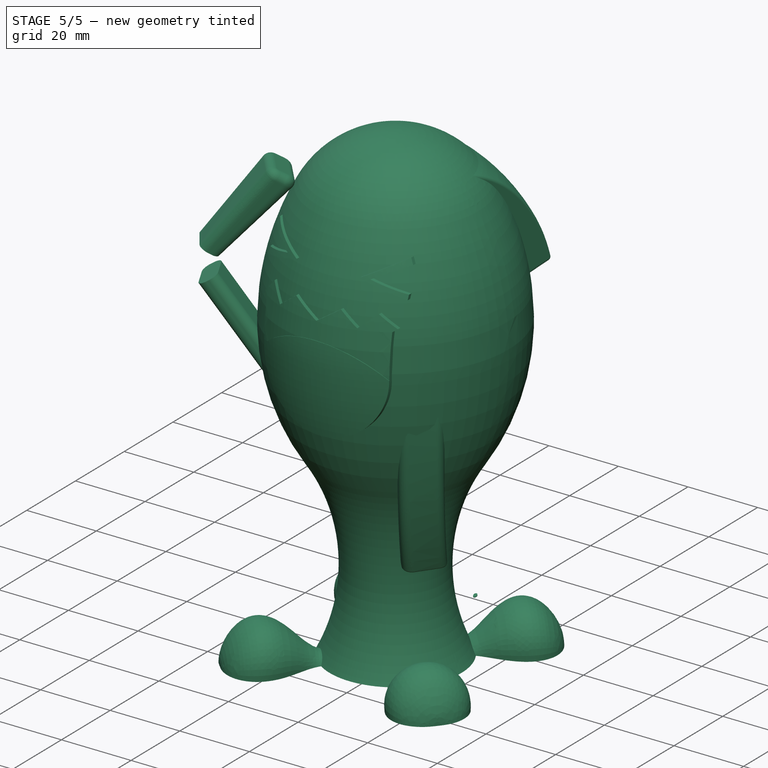
[diagram: stage 5 of 5 — iso view after this stage's code; geometry added in this stage tinted green]
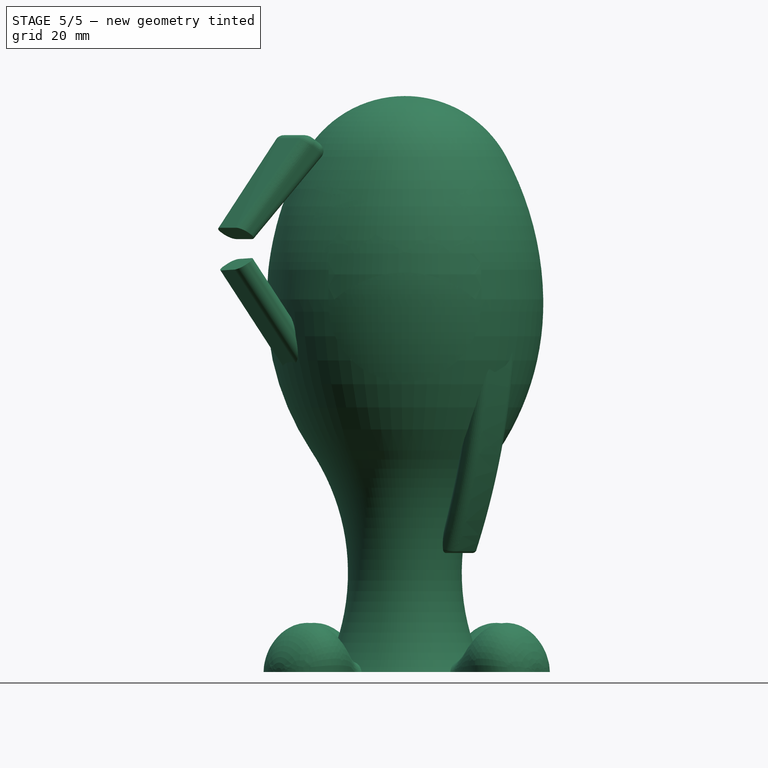
[diagram: stage 5 of 5 — front view after this stage's code; geometry added in this stage tinted green]
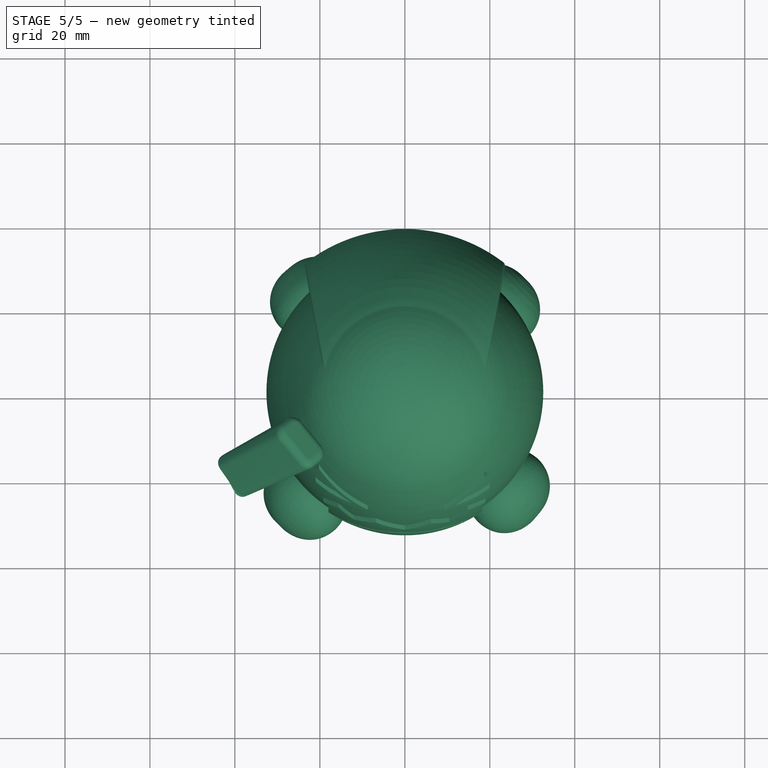
[diagram: stage 5 of 5 — top view after this stage's code; geometry added in this stage tinted green]
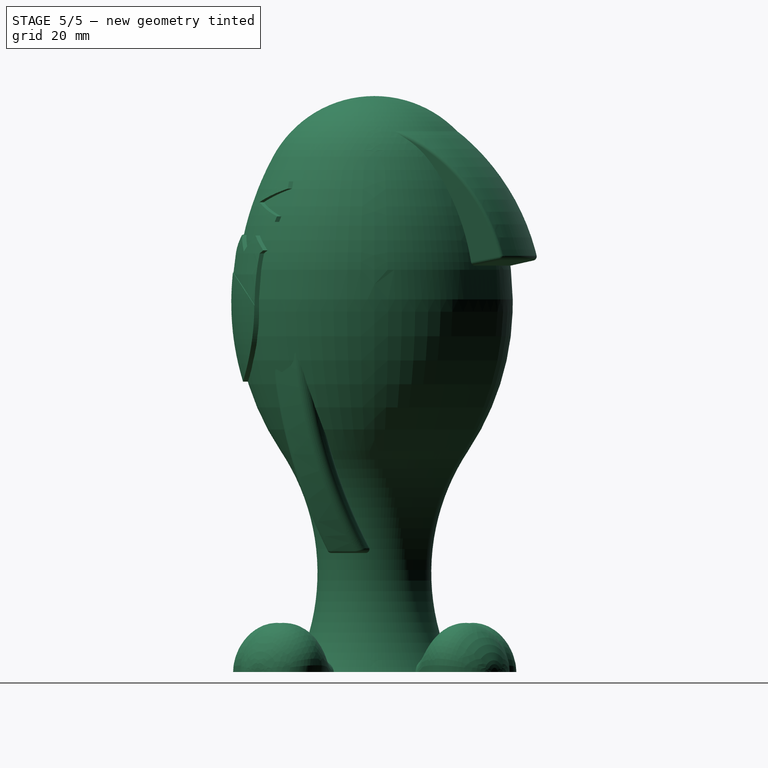
[diagram: stage 5 of 5 — right view after this stage's code; geometry added in this stage tinted green]
FEATURE [Sketcher::SketchObject] Sketch002
  ArcFitTolerance = 1e-06
  FullyConstrained = false
  MakeInternals = false
  sketch-geometry (13):
    g0: LineSegment StartX=-3.19293 StartY=-2.6774 StartZ=0 EndX=3.19293 EndY=-2.6774 EndZ=0
    g1: LineSegment StartX=5.50674 StartY=-0.363597 StartZ=0 EndX=5.50674 EndY=0.363597 EndZ=0
    g2: LineSegment StartX=3.19293 StartY=2.6774 StartZ=0 EndX=-3.19293 EndY=2.6774 EndZ=0
    g3: LineSegment StartX=-5.50674 StartY=0.363597 StartZ=0 EndX=-5.50674 EndY=-0.363597 EndZ=0
    g4: GeomPoint [constr] X=0 Y=0 Z=0
    g5: ArcOfCircle CenterX=3.19293 CenterY=0.363597 CenterZ=0 NormalX=0 NormalY=0 NormalZ=1 AngleXU=0 Radius=2.3138 StartAngle=0 EndAngle=1.5708
    g6: GeomPoint [constr] X=5.50674 Y=2.6774 Z=0
    g7: ArcOfCircle CenterX=3.19293 CenterY=-0.363597 CenterZ=0 NormalX=0 NormalY=0 NormalZ=1 AngleXU=0 Radius=2.3138 StartAngle=4.71239 EndAngle=6.28319
    g8: GeomPoint [constr] X=5.50674 Y=-2.6774 Z=0
    g9: ArcOfCircle CenterX=-3.19293 CenterY=-0.363597 CenterZ=0 NormalX=0 NormalY=0 NormalZ=1 AngleXU=0 Radius=2.3138 StartAngle=3.14159 EndAngle=4.71239
    g10: GeomPoint [constr] X=-5.50674 Y=-2.6774 Z=0
    g11: ArcOfCircle CenterX=-3.19293 CenterY=0.363597 CenterZ=0 NormalX=0 NormalY=0 NormalZ=1 AngleXU=0 Radius=2.3138 StartAngle=1.5708 EndAngle=3.14159
    g12: GeomPoint [constr] X=-5.50674 Y=2.6774 Z=0
  constraints (25):
    c: Horizontal(g0)
    c: Horizontal(g2)
    c: Vertical(g1)
    c: Vertical(g3)
    c: Symmetric(g6,g10,g4)
    c: Coincident(g4,g-1)
    c: PointOnObject(g6,g1)
    c: PointOnObject(g6,g2)
    c: Tangent(g1,g5) = -1.5708
    c: Tangent(g2,g5) = -1.5708
    c: PointOnObject(g8,g1)
    c: PointOnObject(g8,g0)
    c: Tangent(g1,g7) = -1.5708
    c: Tangent(g0,g7) = -1.5708
    c: PointOnObject(g10,g0)
    c: PointOnObject(g10,g3)
    c: Tangent(g0,g9) = -1.5708
    c: Tangent(g3,g9) = -1.5708
    c: PointOnObject(g12,g3)
    c: PointOnObject(g12,g2)
    c: Tangent(g3,g11) = -1.5708
    c: Tangent(g2,g11) = -1.5708
    c: Equal(g11,g5)
    c: Equal(g5,g7)
    c: Equal(g7,g9)
FEATURE [Sketcher::SketchObject] Sketch003
  ArcFitTolerance = 1e-06
  FullyConstrained = false
  MakeInternals = false
  sketch-geometry (13):
    g0: LineSegment StartX=-3.19293 StartY=-2.6774 StartZ=0 EndX=3.19293 EndY=-2.6774 EndZ=0
    g1: LineSegment StartX=5.50674 StartY=-0.363597 StartZ=0 EndX=5.50674 EndY=0.363597 EndZ=0
    g2: LineSegment StartX=3.19293 StartY=2.6774 StartZ=0 EndX=-3.19293 EndY=2.6774 EndZ=0
    g3: LineSegment StartX=-5.50674 StartY=0.363597 StartZ=0 EndX=-5.50674 EndY=-0.363597 EndZ=0
    g4: GeomPoint [constr] X=0 Y=0 Z=0
    g5: ArcOfCircle CenterX=3.19293 CenterY=0.363597 CenterZ=0 NormalX=0 NormalY=0 NormalZ=1 AngleXU=0 Radius=2.3138 StartAngle=0 EndAngle=1.5708
    g6: GeomPoint [constr] X=5.50674 Y=2.6774 Z=0
    g7: ArcOfCircle CenterX=3.19293 CenterY=-0.363597 CenterZ=0 NormalX=0 NormalY=0 NormalZ=1 AngleXU=0 Radius=2.3138 StartAngle=4.71239 EndAngle=6.28319
    g8: GeomPoint [constr] X=5.50674 Y=-2.6774 Z=0
    g9: ArcOfCircle CenterX=-3.19293 CenterY=-0.363597 CenterZ=0 NormalX=0 NormalY=0 NormalZ=1 AngleXU=0 Radius=2.3138 StartAngle=3.14159 EndAngle=4.71239
    g10: GeomPoint [constr] X=-5.50674 Y=-2.6774 Z=0
    g11: ArcOfCircle CenterX=-3.19293 CenterY=0.363597 CenterZ=0 NormalX=0 NormalY=0 NormalZ=1 AngleXU=0 Radius=2.3138 StartAngle=1.5708 EndAngle=3.14159
    g12: GeomPoint [constr] X=-5.50674 Y=2.6774 Z=0
  constraints (25):
    c: Horizontal(g0)
    c: Horizontal(g2)
    c: Vertical(g1)
    c: Vertical(g3)
    c: Symmetric(g6,g10,g4)
    c: Coincident(g4,g-1)
    c: PointOnObject(g6,g1)
    c: PointOnObject(g6,g2)
    c: Tangent(g1,g5) = -1.5708
    c: Tangent(g2,g5) = -1.5708
    c: PointOnObject(g8,g1)
    c: PointOnObject(g8,g0)
    c: Tangent(g1,g7) = -1.5708
    c: Tangent(g0,g7) = -1.5708
    c: PointOnObject(g10,g0)
    c: PointOnObject(g10,g3)
    c: Tangent(g0,g9) = -1.5708
    c: Tangent(g3,g9) = -1.5708
    c: PointOnObject(g12,g3)
    c: PointOnObject(g12,g2)
    c: Tangent(g3,g11) = -1.5708
    c: Tangent(g2,g11) = -1.5708
    c: Equal(g11,g5)
    c: Equal(g5,g7)
    c: Equal(g7,g9)
FEATURE [Sketcher::SketchObject] Sketch004
  ArcFitTolerance = 1e-06
  FullyConstrained = false
  MakeInternals = false
  sketch-geometry (13):
    g0: LineSegment StartX=-3.19293 StartY=-2.6774 StartZ=0 EndX=3.19293 EndY=-2.6774 EndZ=0
    g1: LineSegment StartX=5.50674 StartY=-0.363597 StartZ=0 EndX=5.50674 EndY=0.363597 EndZ=0
    g2: LineSegment StartX=3.19293 StartY=2.6774 StartZ=0 EndX=-3.19293 EndY=2.6774 EndZ=0
    g3: LineSegment StartX=-5.50674 StartY=0.363597 StartZ=0 EndX=-5.50674 EndY=-0.363597 EndZ=0
    g4: GeomPoint [constr] X=0 Y=0 Z=0
    g5: ArcOfCircle CenterX=3.19293 CenterY=0.363597 CenterZ=0 NormalX=0 NormalY=0 NormalZ=1 AngleXU=0 Radius=2.3138 StartAngle=0 EndAngle=1.5708
    g6: GeomPoint [constr] X=5.50674 Y=2.6774 Z=0
    g7: ArcOfCircle CenterX=3.19293 CenterY=-0.363597 CenterZ=0 NormalX=0 NormalY=0 NormalZ=1 AngleXU=0 Radius=2.3138 StartAngle=4.71239 EndAngle=6.28319
    g8: GeomPoint [constr] X=5.50674 Y=-2.6774 Z=0
    g9: ArcOfCircle CenterX=-3.19293 CenterY=-0.363597 CenterZ=0 NormalX=0 NormalY=0 NormalZ=1 AngleXU=0 Radius=2.3138 StartAngle=3.14159 EndAngle=4.71239
    g10: GeomPoint [constr] X=-5.50674 Y=-2.6774 Z=0
    g11: ArcOfCircle CenterX=-3.19293 CenterY=0.363597 CenterZ=0 NormalX=0 NormalY=0 NormalZ=1 AngleXU=0 Radius=2.3138 StartAngle=1.5708 EndAngle=3.14159
    g12: GeomPoint [constr] X=-5.50674 Y=2.6774 Z=0
  constraints (25):
    c: Horizontal(g0)
    c: Horizontal(g2)
    c: Vertical(g1)
    c: Vertical(g3)
    c: Symmetric(g6,g10,g4)
    c: Coincident(g4,g-1)
    c: PointOnObject(g6,g1)
    c: PointOnObject(g6,g2)
    c: Tangent(g1,g5) = -1.5708
    c: Tangent(g2,g5) = -1.5708
    c: PointOnObject(g8,g1)
    c: PointOnObject(g8,g0)
    c: Tangent(g1,g7) = -1.5708
    c: Tangent(g0,g7) = -1.5708
    c: PointOnObject(g10,g0)
    c: PointOnObject(g10,g3)
    c: Tangent(g0,g9) = -1.5708
    c: Tangent(g3,g9) = -1.5708
    c: PointOnObject(g12,g3)
    c: PointOnObject(g12,g2)
    c: Tangent(g3,g11) = -1.5708
    c: Tangent(g2,g11) = -1.5708
    c: Equal(g11,g5)
    c: Equal(g5,g7)
    c: Equal(g7,g9)
FEATURE [Part::Face] Face
  FaceMakerClass = Part::FaceMakerBullseye
  Placement = pos=(21.3567,-19.5963,81.5) rot=(0,0,1;0.785398rad)
  Sources = -> [Sketch002]
FEATURE [Part::Face] Face001
  FaceMakerClass = Part::FaceMakerBullseye
  Placement = pos=(19.0566,-16.8155,59) rot=(0,0,-1;5.49779rad)
  Sources = -> [Sketch003]
FEATURE [Part::Face] Face002
  FaceMakerClass = Part::FaceMakerBullseye
  Placement = pos=(12.1647,-5.58511,28) rot=(0,0,1;0.959931rad)
  Sources = -> [Sketch004]
FEATURE [Part::Loft] Loft
  Closed = false
  MaxDegree = 5
  Ruled = false
  Sections = -> [Face,Face001,Face002]
  Solid = true
FEATURE [Part::Fillet] Fillet
  Base = -> Loft
  EdgeLinks = -> Loft [Edge1]
  Edges = 1 edges r=2: [Edge1]
FEATURE [Part::Fillet] Fillet001
  Base = -> Fillet
  EdgeLinks = -> Fillet [Edge3]
  Edges = 1 edges r=1: [Edge3]
FEATURE [Sketcher::SketchObject] Sketch005
  ArcFitTolerance = 1e-06
  FullyConstrained = false
  MakeInternals = false
  sketch-geometry (13):
    g0: LineSegment StartX=-3.19293 StartY=-2.6774 StartZ=0 EndX=3.19293 EndY=-2.6774 EndZ=0
    g1: LineSegment StartX=5.50674 StartY=-0.363597 StartZ=0 EndX=5.50674 EndY=0.363597 EndZ=0
    g2: LineSegment StartX=3.19293 StartY=2.6774 StartZ=0 EndX=-3.19293 EndY=2.6774 EndZ=0
    g3: LineSegment StartX=-5.50674 StartY=0.363597 StartZ=0 EndX=-5.50674 EndY=-0.363597 EndZ=0
    g4: GeomPoint [constr] X=0 Y=0 Z=0
    g5: ArcOfCircle CenterX=3.19293 CenterY=0.363597 CenterZ=0 NormalX=0 NormalY=0 NormalZ=1 AngleXU=0 Radius=2.3138 StartAngle=0 EndAngle=1.5708
    g6: GeomPoint [constr] X=5.50674 Y=2.6774 Z=0
    g7: ArcOfCircle CenterX=3.19293 CenterY=-0.363597 CenterZ=0 NormalX=0 NormalY=0 NormalZ=1 AngleXU=0 Radius=2.3138 StartAngle=4.71239 EndAngle=6.28319
    g8: GeomPoint [constr] X=5.50674 Y=-2.6774 Z=0
    g9: ArcOfCircle CenterX=-3.19293 CenterY=-0.363597 CenterZ=0 NormalX=0 NormalY=0 NormalZ=1 AngleXU=0 Radius=2.3138 StartAngle=3.14159 EndAngle=4.71239
    g10: GeomPoint [constr] X=-5.50674 Y=-2.6774 Z=0
    g11: ArcOfCircle CenterX=-3.19293 CenterY=0.363597 CenterZ=0 NormalX=0 NormalY=0 NormalZ=1 AngleXU=0 Radius=2.3138 StartAngle=1.5708 EndAngle=3.14159
    g12: GeomPoint [constr] X=-5.50674 Y=2.6774 Z=0
  constraints (25):
    c: Horizontal(g0)
    c: Horizontal(g2)
    c: Vertical(g1)
    c: Vertical(g3)
    c: Symmetric(g6,g10,g4)
    c: Coincident(g4,g-1)
    c: PointOnObject(g6,g1)
    c: PointOnObject(g6,g2)
    c: Tangent(g1,g5) = -1.5708
    c: Tangent(g2,g5) = -1.5708
    c: PointOnObject(g8,g1)
    c: PointOnObject(g8,g0)
    c: Tangent(g1,g7) = -1.5708
    c: Tangent(g0,g7) = -1.5708
    c: PointOnObject(g10,g0)
    c: PointOnObject(g10,g3)
    c: Tangent(g0,g9) = -1.5708
    c: Tangent(g3,g9) = -1.5708
    c: PointOnObject(g12,g3)
    c: PointOnObject(g12,g2)
    c: Tangent(g3,g11) = -1.5708
    c: Tangent(g2,g11) = -1.5708
    c: Equal(g11,g5)
    c: Equal(g5,g7)
    c: Equal(g7,g9)
FEATURE [Sketcher::SketchObject] Sketch006
  ArcFitTolerance = 1e-06
  FullyConstrained = false
  MakeInternals = false
  sketch-geometry (13):
    g0: LineSegment StartX=-3.19293 StartY=-2.6774 StartZ=0 EndX=3.19293 EndY=-2.6774 EndZ=0
    g1: LineSegment StartX=5.50674 StartY=-0.363597 StartZ=0 EndX=5.50674 EndY=0.363597 EndZ=0
    g2: LineSegment StartX=3.19293 StartY=2.6774 StartZ=0 EndX=-3.19293 EndY=2.6774 EndZ=0
    g3: LineSegment StartX=-5.50674 StartY=0.363597 StartZ=0 EndX=-5.50674 EndY=-0.363597 EndZ=0
    g4: GeomPoint [constr] X=0 Y=0 Z=0
    g5: ArcOfCircle CenterX=3.19293 CenterY=0.363597 CenterZ=0 NormalX=0 NormalY=0 NormalZ=1 AngleXU=0 Radius=2.3138 StartAngle=0 EndAngle=1.5708
    g6: GeomPoint [constr] X=5.50674 Y=2.6774 Z=0
    g7: ArcOfCircle CenterX=3.19293 CenterY=-0.363597 CenterZ=0 NormalX=0 NormalY=0 NormalZ=1 AngleXU=0 Radius=2.3138 StartAngle=4.71239 EndAngle=6.28319
    g8: GeomPoint [constr] X=5.50674 Y=-2.6774 Z=0
    g9: ArcOfCircle CenterX=-3.19293 CenterY=-0.363597 CenterZ=0 NormalX=0 NormalY=0 NormalZ=1 AngleXU=0 Radius=2.3138 StartAngle=3.14159 EndAngle=4.71239
    g10: GeomPoint [constr] X=-5.50674 Y=-2.6774 Z=0
    g11: ArcOfCircle CenterX=-3.19293 CenterY=0.363597 CenterZ=0 NormalX=0 NormalY=0 NormalZ=1 AngleXU=0 Radius=2.3138 StartAngle=1.5708 EndAngle=3.14159
    g12: GeomPoint [constr] X=-5.50674 Y=2.6774 Z=0
  constraints (25):
    c: Horizontal(g0)
    c: Horizontal(g2)
    c: Vertical(g1)
    c: Vertical(g3)
    c: Symmetric(g6,g10,g4)
    c: Coincident(g4,g-1)
    c: PointOnObject(g6,g1)
    c: PointOnObject(g6,g2)
    c: Tangent(g1,g5) = -1.5708
    c: Tangent(g2,g5) = -1.5708
    c: PointOnObject(g8,g1)
    c: PointOnObject(g8,g0)
    c: Tangent(g1,g7) = -1.5708
    c: Tangent(g0,g7) = -1.5708
    c: PointOnObject(g10,g0)
    c: PointOnObject(g10,g3)
    c: Tangent(g0,g9) = -1.5708
    c: Tangent(g3,g9) = -1.5708
    c: PointOnObject(g12,g3)
    c: PointOnObject(g12,g2)
    c: Tangent(g3,g11) = -1.5708
    c: Tangent(g2,g11) = -1.5708
    c: Equal(g11,g5)
    c: Equal(g5,g7)
    c: Equal(g7,g9)
FEATURE [Sketcher::SketchObject] Sketch007
  ArcFitTolerance = 1e-06
  FullyConstrained = false
  MakeInternals = false
  sketch-geometry (13):
    g0: LineSegment StartX=-3.65706 StartY=-3.99514 StartZ=0 EndX=3.65706 EndY=-3.99514 EndZ=0
    g1: LineSegment StartX=6.488 StartY=-1.16419 StartZ=0 EndX=6.488 EndY=1.16419 EndZ=0
    g2: LineSegment StartX=3.65706 StartY=3.99514 StartZ=0 EndX=-3.65706 EndY=3.99514 EndZ=0
    g3: LineSegment StartX=-6.488 StartY=1.16419 StartZ=0 EndX=-6.488 EndY=-1.16419 EndZ=0
    g4: GeomPoint [constr] X=0 Y=0 Z=0
    g5: ArcOfCircle CenterX=3.65706 CenterY=1.16419 CenterZ=0 NormalX=0 NormalY=0 NormalZ=1 AngleXU=0 Radius=2.83095 StartAngle=0 EndAngle=1.5708
    g6: GeomPoint [constr] X=6.488 Y=3.99514 Z=0
    g7: ArcOfCircle CenterX=3.65706 CenterY=-1.16419 CenterZ=0 NormalX=0 NormalY=0 NormalZ=1 AngleXU=0 Radius=2.83095 StartAngle=4.71239 EndAngle=6.28319
    g8: GeomPoint [constr] X=6.488 Y=-3.99514 Z=0
    g9: ArcOfCircle CenterX=-3.65706 CenterY=-1.16419 CenterZ=0 NormalX=0 NormalY=0 NormalZ=1 AngleXU=0 Radius=2.83095 StartAngle=3.14159 EndAngle=4.71239
    g10: GeomPoint [constr] X=-6.488 Y=-3.99514 Z=0
    g11: ArcOfCircle CenterX=-3.65706 CenterY=1.16419 CenterZ=0 NormalX=0 NormalY=0 NormalZ=1 AngleXU=0 Radius=2.83095 StartAngle=1.5708 EndAngle=3.14159
    g12: GeomPoint [constr] X=-6.488 Y=3.99514 Z=0
  constraints (25):
    c: Horizontal(g0)
    c: Horizontal(g2)
    c: Vertical(g1)
    c: Vertical(g3)
    c: Symmetric(g6,g10,g4)
    c: Coincident(g4,g-1)
    c: PointOnObject(g6,g1)
    c: PointOnObject(g6,g2)
    c: Tangent(g1,g5) = -1.5708
    c: Tangent(g2,g5) = -1.5708
    c: PointOnObject(g8,g1)
    c: PointOnObject(g8,g0)
    c: Tangent(g1,g7) = -1.5708
    c: Tangent(g0,g7) = -1.5708
    c: PointOnObject(g10,g0)
    c: PointOnObject(g10,g3)
    c: Tangent(g0,g9) = -1.5708
    c: Tangent(g3,g9) = -1.5708
    c: PointOnObject(g12,g3)
    c: PointOnObject(g12,g2)
    c: Tangent(g3,g11) = -1.5708
    c: Tangent(g2,g11) = -1.5708
    c: Equal(g11,g5)
    c: Equal(g5,g7)
    c: Equal(g7,g9)
FEATURE [Part::Face] Face003
  FaceMakerClass = Part::FaceMakerBullseye
  Placement = pos=(-22.1121,-11.6117,69) rot=(-0.552483,0.318976,0.770076;4.99653rad)
  Sources = -> [Sketch005]
FEATURE [Part::Face] Face004
  FaceMakerClass = Part::FaceMakerBullseye
  Placement = pos=(-39.6309,-19.5711,95.9659) rot=(0.388308,-0.264436,-0.882774;1.18311rad)
  Sources = -> [Sketch006]
FEATURE [Part::Face] Face005
  FaceMakerClass = Part::FaceMakerBullseye
  Placement = pos=(-23.7111,-12.1236,125) rot=(-0.485298,0.226298,-0.844556;1.00896rad)
  Sources = -> [Sketch007]
FEATURE [Sketcher::SketchObject] Sketch008
  ArcFitTolerance = 1e-06
  FullyConstrained = false
  MakeInternals = false
  sketch-geometry (13):
    g0: LineSegment StartX=-3.19293 StartY=-2.6774 StartZ=0 EndX=3.19293 EndY=-2.6774 EndZ=0
    g1: LineSegment StartX=5.50674 StartY=-0.363597 StartZ=0 EndX=5.50674 EndY=0.363597 EndZ=0
    g2: LineSegment StartX=3.19293 StartY=2.6774 StartZ=0 EndX=-3.19293 EndY=2.6774 EndZ=0
    g3: LineSegment StartX=-5.50674 StartY=0.363597 StartZ=0 EndX=-5.50674 EndY=-0.363597 EndZ=0
    g4: GeomPoint [constr] X=0 Y=0 Z=0
    g5: ArcOfCircle CenterX=3.19293 CenterY=0.363597 CenterZ=0 NormalX=0 NormalY=0 NormalZ=1 AngleXU=0 Radius=2.3138 StartAngle=0 EndAngle=1.5708
    g6: GeomPoint [constr] X=5.50674 Y=2.6774 Z=0
    g7: ArcOfCircle CenterX=3.19293 CenterY=-0.363597 CenterZ=0 NormalX=0 NormalY=0 NormalZ=1 AngleXU=0 Radius=2.3138 StartAngle=4.71239 EndAngle=6.28319
    g8: GeomPoint [constr] X=5.50674 Y=-2.6774 Z=0
    g9: ArcOfCircle CenterX=-3.19293 CenterY=-0.363597 CenterZ=0 NormalX=0 NormalY=0 NormalZ=1 AngleXU=0 Radius=2.3138 StartAngle=3.14159 EndAngle=4.71239
    g10: GeomPoint [constr] X=-5.50674 Y=-2.6774 Z=0
    g11: ArcOfCircle CenterX=-3.19293 CenterY=0.363597 CenterZ=0 NormalX=0 NormalY=0 NormalZ=1 AngleXU=0 Radius=2.3138 StartAngle=1.5708 EndAngle=3.14159
    g12: GeomPoint [constr] X=-5.50674 Y=2.6774 Z=0
  constraints (25):
    c: Horizontal(g0)
    c: Horizontal(g2)
    c: Vertical(g1)
    c: Vertical(g3)
    c: Symmetric(g6,g10,g4)
    c: Coincident(g4,g-1)
    c: PointOnObject(g6,g1)
    c: PointOnObject(g6,g2)
    c: Tangent(g1,g5) = -1.5708
    c: Tangent(g2,g5) = -1.5708
    c: PointOnObject(g8,g1)
    c: PointOnObject(g8,g0)
    c: Tangent(g1,g7) = -1.5708
    c: Tangent(g0,g7) = -1.5708
    c: PointOnObject(g10,g0)
    c: PointOnObject(g10,g3)
    c: Tangent(g0,g9) = -1.5708
    c: Tangent(g3,g9) = -1.5708
    c: PointOnObject(g12,g3)
    c: PointOnObject(g12,g2)
    c: Tangent(g3,g11) = -1.5708
    c: Tangent(g2,g11) = -1.5708
    c: Equal(g11,g5)
    c: Equal(g5,g7)
    c: Equal(g7,g9)
FEATURE [Part::Face] Face006
  FaceMakerClass = Part::FaceMakerBullseye
  Placement = pos=(-39.7471,-19.6525,103.237) rot=(-0.445197,0.231755,-0.864921;1.08358rad)
  Sources = -> [Sketch008]
FEATURE [Part::Loft] Loft001
  Closed = false
  MaxDegree = 5
  Ruled = false
  Sections = -> [Face003,Face004]
  Solid = true
FEATURE [Sketcher::SketchObject] Sketch009
  ArcFitTolerance = 1e-06
  FullyConstrained = false
  MakeInternals = false
  sketch-geometry (13):
    g0: LineSegment StartX=-3.19293 StartY=-2.6774 StartZ=0 EndX=3.19293 EndY=-2.6774 EndZ=0
    g1: LineSegment StartX=5.50674 StartY=-0.363597 StartZ=0 EndX=5.50674 EndY=0.363597 EndZ=0
    g2: LineSegment StartX=3.19293 StartY=2.6774 StartZ=0 EndX=-3.19293 EndY=2.6774 EndZ=0
    g3: LineSegment StartX=-5.50674 StartY=0.363597 StartZ=0 EndX=-5.50674 EndY=-0.363597 EndZ=0
    g4: GeomPoint [constr] X=0 Y=0 Z=0
    g5: ArcOfCircle CenterX=3.19293 CenterY=0.363597 CenterZ=0 NormalX=0 NormalY=0 NormalZ=1 AngleXU=0 Radius=2.3138 StartAngle=0 EndAngle=1.5708
    g6: GeomPoint [constr] X=5.50674 Y=2.6774 Z=0
    g7: ArcOfCircle CenterX=3.19293 CenterY=-0.363597 CenterZ=0 NormalX=0 NormalY=0 NormalZ=1 AngleXU=0 Radius=2.3138 StartAngle=4.71239 EndAngle=6.28319
    g8: GeomPoint [constr] X=5.50674 Y=-2.6774 Z=0
    g9: ArcOfCircle CenterX=-3.19293 CenterY=-0.363597 CenterZ=0 NormalX=0 NormalY=0 NormalZ=1 AngleXU=0 Radius=2.3138 StartAngle=3.14159 EndAngle=4.71239
    g10: GeomPoint [constr] X=-5.50674 Y=-2.6774 Z=0
    g11: ArcOfCircle CenterX=-3.19293 CenterY=0.363597 CenterZ=0 NormalX=0 NormalY=0 NormalZ=1 AngleXU=0 Radius=2.3138 StartAngle=1.5708 EndAngle=3.14159
    g12: GeomPoint [constr] X=-5.50674 Y=2.6774 Z=0
  constraints (25):
    c: Horizontal(g0)
    c: Horizontal(g2)
    c: Vertical(g1)
    c: Vertical(g3)
    c: Symmetric(g6,g10,g4)
    c: Coincident(g4,g-1)
    c: PointOnObject(g6,g1)
    c: PointOnObject(g6,g2)
    c: Tangent(g1,g5) = -1.5708
    c: Tangent(g2,g5) = -1.5708
    c: PointOnObject(g8,g1)
    c: PointOnObject(g8,g0)
    c: Tangent(g1,g7) = -1.5708
    c: Tangent(g0,g7) = -1.5708
    c: PointOnObject(g10,g0)
    c: PointOnObject(g10,g3)
    c: Tangent(g0,g9) = -1.5708
    c: Tangent(g3,g9) = -1.5708
    c: PointOnObject(g12,g3)
    c: PointOnObject(g12,g2)
    c: Tangent(g3,g11) = -1.5708
    c: Tangent(g2,g11) = -1.5708
    c: Equal(g11,g5)
    c: Equal(g5,g7)
    c: Equal(g7,g9)
FEATURE [Part::Face] Face007
  FaceMakerClass = Part::FaceMakerBullseye
  Placement = pos=(-40.7564,-20.3592,99.1027) rot=(0,0,-1;0.959931rad)
  Sources = -> [Sketch009]
FEATURE [Part::Loft] Loft003
  Closed = false
  MaxDegree = 5
  Ruled = false
  Sections = -> [Face004,Face007,Face006]
  Solid = false
FEATURE [Part::Loft] Loft004
  Closed = false
  MaxDegree = 5
  Ruled = false
  Sections = -> [Face006,Face005]
  Solid = true
FEATURE [Part::Fillet] Fillet002
  Base = -> Loft004
  EdgeLinks = -> Loft004 [Edge3]
  Edges = 1 edges r=2: [Edge3]
FEATURE [Sketcher::SketchObject] Sketch019
  ArcFitTolerance = 1e-06
  FullyConstrained = false
  MakeInternals = false
  Placement = pos=(38,0,0) rot=(0,1,0;1.5708rad)
  sketch-geometry (2):
    g0: LineSegment StartX=-1.18e-14 StartY=-10 StartZ=0 EndX=-1.18e-14 EndY=10 EndZ=0
    g1: ArcOfCircle CenterX=-1 CenterY=0 CenterZ=0 NormalX=1e-16 NormalY=0 NormalZ=1 AngleXU=1.5708 Radius=10.0499 StartAngle=6.18352 EndAngle=9.52445
  constraints (1):
    c: Vertical(g0)
FEATURE [Sketcher::SketchObject] Sketch021
  ArcFitTolerance = 1e-06
  FullyConstrained = false
  MakeInternals = false
  Placement = pos=(42,1.15e-14,-6.7e-15) rot=(0,1,0;1.5708rad)
  sketch-geometry (2):
    g0: ArcOfCircle CenterX=-1.15e-14 CenterY=-1.15e-14 CenterZ=0 NormalX=-2e-16 NormalY=0 NormalZ=1 AngleXU=1.5708 Radius=8 StartAngle=0 EndAngle=3.14159
    g1: LineSegment StartX=-7.2e-15 StartY=-8 StartZ=0 EndX=-7.2e-15 EndY=8 EndZ=0
  constraints (1):
    c: Vertical(g1)
FEATURE [Sketcher::SketchObject] Sketch023
  ArcFitTolerance = 1e-06
  FullyConstrained = false
  MakeInternals = false
  Placement = pos=(45,0,0) rot=(0,1,0;1.5708rad)
  sketch-geometry (2):
    g0: ArcOfCircle CenterX=3.2e-15 CenterY=0 CenterZ=0 NormalX=3e-16 NormalY=4e-16 NormalZ=1 AngleXU=2e-16 Radius=1 StartAngle=0 EndAngle=3.14159
    g1: LineSegment StartX=3.3e-15 StartY=-1 StartZ=0 EndX=3.3e-15 EndY=1 EndZ=0
  constraints (1):
    c: Vertical(g1)
FEATURE [Sketcher::SketchObject] Sketch024
  ArcFitTolerance = 1e-06
  FullyConstrained = false
  MakeInternals = false
  Placement = pos=(14,1.15e-14,0) rot=(0,1,0;1.5708rad)
  sketch-geometry (2):
    g0: ArcOfCircle CenterX=-1.15e-14 CenterY=-1.15e-14 CenterZ=0 NormalX=-2e-16 NormalY=0 NormalZ=1 AngleXU=1.5708 Radius=8 StartAngle=0 EndAngle=3.14159
    g1: LineSegment StartX=-7.2e-15 StartY=-8 StartZ=0 EndX=-7.2e-15 EndY=8 EndZ=0
  constraints (1):
    c: Vertical(g1)
FEATURE [Sketcher::SketchObject] Sketch025
  ArcFitTolerance = 1e-06
  FullyConstrained = false
  MakeInternals = false
  Placement = pos=(26,0,0) rot=(0,1,0;1.5708rad)
  sketch-geometry (2):
    g0: ArcOfCircle CenterX=8.3e-15 CenterY=0 CenterZ=0 NormalX=1e-16 NormalY=0 NormalZ=1 AngleXU=1.5708 Radius=6 StartAngle=0 EndAngle=3.14159
    g1: LineSegment StartX=7.6e-15 StartY=-6 StartZ=0 EndX=7.6e-15 EndY=6 EndZ=0
  constraints (1):
    c: Vertical(g1)
FEATURE [Part::Loft] Loft005
  Closed = false
  MaxDegree = 5
  Placement = pos=(-3.53553,-3.53553,0) rot=(0,0,1;0.785398rad)
  Ruled = false
  Sections = -> [Sketch024,Sketch025,Sketch019,Sketch021,Sketch023]
  Solid = true
FEATURE [Sketcher::SketchObject] Sketch026
  ArcFitTolerance = 1e-06
  FullyConstrained = false
  MakeInternals = false
  Placement = pos=(38,0,0) rot=(0,1,0;1.5708rad)
  sketch-geometry (2):
    g0: LineSegment StartX=-1.18e-14 StartY=-10 StartZ=0 EndX=-1.18e-14 EndY=10 EndZ=0
    g1: ArcOfCircle CenterX=-1 CenterY=0 CenterZ=0 NormalX=1e-16 NormalY=0 NormalZ=1 AngleXU=1.5708 Radius=10.0499 StartAngle=6.18352 EndAngle=9.52445
  constraints (1):
    c: Vertical(g0)
FEATURE [Sketcher::SketchObject] Sketch027
  ArcFitTolerance = 1e-06
  FullyConstrained = false
  MakeInternals = false
  Placement = pos=(42,1.15e-14,-6.7e-15) rot=(0,1,0;1.5708rad)
  sketch-geometry (2):
    g0: ArcOfCircle CenterX=-1.15e-14 CenterY=-1.15e-14 CenterZ=0 NormalX=-2e-16 NormalY=0 NormalZ=1 AngleXU=1.5708 Radius=8 StartAngle=0 EndAngle=3.14159
    g1: LineSegment StartX=-7.2e-15 StartY=-8 StartZ=0 EndX=-7.2e-15 EndY=8 EndZ=0
  constraints (1):
    c: Vertical(g1)
FEATURE [Sketcher::SketchObject] Sketch028
  ArcFitTolerance = 1e-06
  FullyConstrained = false
  MakeInternals = false
  Placement = pos=(45,0,0) rot=(0,1,0;1.5708rad)
  sketch-geometry (2):
    g0: ArcOfCircle CenterX=3.2e-15 CenterY=0 CenterZ=0 NormalX=3e-16 NormalY=4e-16 NormalZ=1 AngleXU=2e-16 Radius=1 StartAngle=0 EndAngle=3.14159
    g1: LineSegment StartX=3.3e-15 StartY=-1 StartZ=0 EndX=3.3e-15 EndY=1 EndZ=0
  constraints (1):
    c: Vertical(g1)
FEATURE [Sketcher::SketchObject] Sketch029
  ArcFitTolerance = 1e-06
  FullyConstrained = false
  MakeInternals = false
  Placement = pos=(14,1.15e-14,0) rot=(0,1,0;1.5708rad)
  sketch-geometry (2):
    g0: ArcOfCircle CenterX=-1.15e-14 CenterY=-1.15e-14 CenterZ=0 NormalX=-2e-16 NormalY=0 NormalZ=1 AngleXU=1.5708 Radius=8 StartAngle=0 EndAngle=3.14159
    g1: LineSegment StartX=-7.2e-15 StartY=-8 StartZ=0 EndX=-7.2e-15 EndY=8 EndZ=0
  constraints (1):
    c: Vertical(g1)
FEATURE [Sketcher::SketchObject] Sketch030
  ArcFitTolerance = 1e-06
  FullyConstrained = false
  MakeInternals = false
  Placement = pos=(26,0,0) rot=(0,1,0;1.5708rad)
  sketch-geometry (2):
    g0: ArcOfCircle CenterX=8.3e-15 CenterY=0 CenterZ=0 NormalX=1e-16 NormalY=0 NormalZ=1 AngleXU=1.5708 Radius=6 StartAngle=0 EndAngle=3.14159
    g1: LineSegment StartX=7.6e-15 StartY=-6 StartZ=0 EndX=7.6e-15 EndY=6 EndZ=0
  constraints (1):
    c: Vertical(g1)
FEATURE [Part::Loft] Loft006
  Closed = false
  MaxDegree = 5
  Placement = pos=(-3.26252,1.45701,0) rot=(0,0,1;5.58505rad)
  Ruled = false
  Sections = -> [Sketch029,Sketch030,Sketch026,Sketch027,Sketch028]
  Solid = true
FEATURE [Sketcher::SketchObject] Sketch031
  ArcFitTolerance = 1e-06
  FullyConstrained = false
  MakeInternals = false
  Placement = pos=(38,0,0) rot=(0,1,0;1.5708rad)
  sketch-geometry (2):
    g0: LineSegment StartX=-1.18e-14 StartY=-10 StartZ=0 EndX=-1.18e-14 EndY=10 EndZ=0
    g1: ArcOfCircle CenterX=-1 CenterY=0 CenterZ=0 NormalX=1e-16 NormalY=0 NormalZ=1 AngleXU=1.5708 Radius=10.0499 StartAngle=6.18352 EndAngle=9.52445
  constraints (1):
    c: Vertical(g0)
FEATURE [Sketcher::SketchObject] Sketch032
  ArcFitTolerance = 1e-06
  FullyConstrained = false
  MakeInternals = false
  Placement = pos=(42,1.15e-14,-6.7e-15) rot=(0,1,0;1.5708rad)
  sketch-geometry (2):
    g0: ArcOfCircle CenterX=-1.15e-14 CenterY=-1.15e-14 CenterZ=0 NormalX=-2e-16 NormalY=0 NormalZ=1 AngleXU=1.5708 Radius=8 StartAngle=0 EndAngle=3.14159
    g1: LineSegment StartX=-7.2e-15 StartY=-8 StartZ=0 EndX=-7.2e-15 EndY=8 EndZ=0
  constraints (1):
    c: Vertical(g1)
FEATURE [Sketcher::SketchObject] Sketch033
  ArcFitTolerance = 1e-06
  FullyConstrained = false
  MakeInternals = false
  Placement = pos=(45,0,0) rot=(0,1,0;1.5708rad)
  sketch-geometry (2):
    g0: ArcOfCircle CenterX=3.2e-15 CenterY=0 CenterZ=0 NormalX=3e-16 NormalY=4e-16 NormalZ=1 AngleXU=2e-16 Radius=1 StartAngle=0 EndAngle=3.14159
    g1: LineSegment StartX=3.3e-15 StartY=-1 StartZ=0 EndX=3.3e-15 EndY=1 EndZ=0
  constraints (1):
    c: Vertical(g1)
FEATURE [Sketcher::SketchObject] Sketch034
  ArcFitTolerance = 1e-06
  FullyConstrained = false
  MakeInternals = false
  Placement = pos=(14,1.15e-14,0) rot=(0,1,0;1.5708rad)
  sketch-geometry (2):
    g0: ArcOfCircle CenterX=-1.15e-14 CenterY=-1.15e-14 CenterZ=0 NormalX=-2e-16 NormalY=0 NormalZ=1 AngleXU=1.5708 Radius=8 StartAngle=0 EndAngle=3.14159
    g1: LineSegment StartX=-7.2e-15 StartY=-8 StartZ=0 EndX=-7.2e-15 EndY=8 EndZ=0
  constraints (1):
    c: Vertical(g1)
FEATURE [Sketcher::SketchObject] Sketch035
  ArcFitTolerance = 1e-06
  FullyConstrained = false
  MakeInternals = false
  Placement = pos=(26,0,0) rot=(0,1,0;1.5708rad)
  sketch-geometry (2):
    g0: ArcOfCircle CenterX=8.3e-15 CenterY=0 CenterZ=0 NormalX=1e-16 NormalY=0 NormalZ=1 AngleXU=1.5708 Radius=6 StartAngle=0 EndAngle=3.14159
    g1: LineSegment StartX=7.6e-15 StartY=-6 StartZ=0 EndX=7.6e-15 EndY=6 EndZ=0
  constraints (1):
    c: Vertical(g1)
FEATURE [Part::Loft] Loft007
  Closed = false
  MaxDegree = 5
  Placement = pos=(1.39538,-3.96693,0) rot=(0,0,1;2.26893rad)
  Ruled = false
  Sections = -> [Sketch034,Sketch035,Sketch031,Sketch032,Sketch033]
  Solid = true
FEATURE [Sketcher::SketchObject] Sketch036
  ArcFitTolerance = 1e-06
  FullyConstrained = false
  MakeInternals = false
  Placement = pos=(38,0,0) rot=(0,1,0;1.5708rad)
  sketch-geometry (2):
    g0: LineSegment StartX=-1.18e-14 StartY=-10 StartZ=0 EndX=-1.18e-14 EndY=10 EndZ=0
    g1: ArcOfCircle CenterX=-1 CenterY=0 CenterZ=0 NormalX=1e-16 NormalY=0 NormalZ=1 AngleXU=1.5708 Radius=10.0499 StartAngle=6.18352 EndAngle=9.52445
  constraints (1):
    c: Vertical(g0)
FEATURE [Sketcher::SketchObject] Sketch037
  ArcFitTolerance = 1e-06
  FullyConstrained = false
  MakeInternals = false
  Placement = pos=(42,1.15e-14,-6.7e-15) rot=(0,1,0;1.5708rad)
  sketch-geometry (2):
    g0: ArcOfCircle CenterX=-1.15e-14 CenterY=-1.15e-14 CenterZ=0 NormalX=-2e-16 NormalY=0 NormalZ=1 AngleXU=1.5708 Radius=8 StartAngle=0 EndAngle=3.14159
    g1: LineSegment StartX=-7.2e-15 StartY=-8 StartZ=0 EndX=-7.2e-15 EndY=8 EndZ=0
  constraints (1):
    c: Vertical(g1)
FEATURE [Sketcher::SketchObject] Sketch038
  ArcFitTolerance = 1e-06
  FullyConstrained = false
  MakeInternals = false
  Placement = pos=(45,0,0) rot=(0,1,0;1.5708rad)
  sketch-geometry (2):
    g0: ArcOfCircle CenterX=3.2e-15 CenterY=0 CenterZ=0 NormalX=3e-16 NormalY=4e-16 NormalZ=1 AngleXU=2e-16 Radius=1 StartAngle=0 EndAngle=3.14159
    g1: LineSegment StartX=3.3e-15 StartY=-1 StartZ=0 EndX=3.3e-15 EndY=1 EndZ=0
  constraints (1):
    c: Vertical(g1)
FEATURE [Sketcher::SketchObject] Sketch039
  ArcFitTolerance = 1e-06
  FullyConstrained = false
  MakeInternals = false
  Placement = pos=(14,1.15e-14,0) rot=(0,1,0;1.5708rad)
  sketch-geometry (2):
    g0: ArcOfCircle CenterX=-1.15e-14 CenterY=-1.15e-14 CenterZ=0 NormalX=-2e-16 NormalY=0 NormalZ=1 AngleXU=1.5708 Radius=8 StartAngle=0 EndAngle=3.14159
    g1: LineSegment StartX=-7.2e-15 StartY=-8 StartZ=0 EndX=-7.2e-15 EndY=8 EndZ=0
  constraints (1):
    c: Vertical(g1)
FEATURE [Sketcher::SketchObject] Sketch040
  ArcFitTolerance = 1e-06
  FullyConstrained = false
  MakeInternals = false
  Placement = pos=(26,0,0) rot=(0,1,0;1.5708rad)
  sketch-geometry (2):
    g0: ArcOfCircle CenterX=8.3e-15 CenterY=0 CenterZ=0 NormalX=1e-16 NormalY=0 NormalZ=1 AngleXU=1.5708 Radius=6 StartAngle=0 EndAngle=3.14159
    g1: LineSegment StartX=7.6e-15 StartY=-6 StartZ=0 EndX=7.6e-15 EndY=6 EndZ=0
  constraints (1):
    c: Vertical(g1)
FEATURE [Part::Loft] Loft008
  Closed = false
  MaxDegree = 5
  Placement = pos=(2.12132,2.12132,0) rot=(0,0,1;3.92699rad)
  Ruled = false
  Sections = -> [Sketch039,Sketch040,Sketch036,Sketch037,Sketch038]
  Solid = true
FEATURE [Part::Cut] Cut
  Base = -> Body001
  Refine = true
  Tool = -> Extrude003
FEATURE [Part::Fillet] Fillet003
  Base = -> Cut
  EdgeLinks = -> Cut [Edge12]
  Edges = 1 edges r=1: [Edge12]
FEATURE [Part::Fillet] Fillet004
  Base = -> Fillet003
  EdgeLinks = -> Fillet003 [Edge18]
  Edges = 1 edges r=1: [Edge18]
FEATURE [Part::Fillet] Fillet005
  Base = -> Fillet004
  EdgeLinks = -> Fillet004 [Edge28]
  Edges = 1 edges r=1: [Edge28]
FEATURE [Part::Fillet] Fillet006
  Base = -> Fillet005
  EdgeLinks = -> Fillet005 [Edge1]
  Edges = 1 edges r=0.5: [Edge1]
  Placement = pos=(0,0,-3) rot=(0,0,1;0rad)
FEATURE [App::Part] Part  label="left_arm"
  Group = -> [Fillet,Sketch002,Sketch003,Sketch004,Face001,Face002,Loft,Face,Fillet001]
  Origin = -> Origin002
FEATURE [App::Part] Part001  label="right_arm"
  Group = -> [Sketch005,Sketch006,Sketch007,Face004,Face006,Face003,Face005,Sketch008,Face007,Sketch009,Fillet002,Loft004,Loft003,Loft001]
  Origin = -> Origin003
FEATURE [Part::MultiFuse] Fusion
  Refine = true
  Shapes = -> [Body,Loft005,Loft006,Loft007,Loft008,Fillet006]
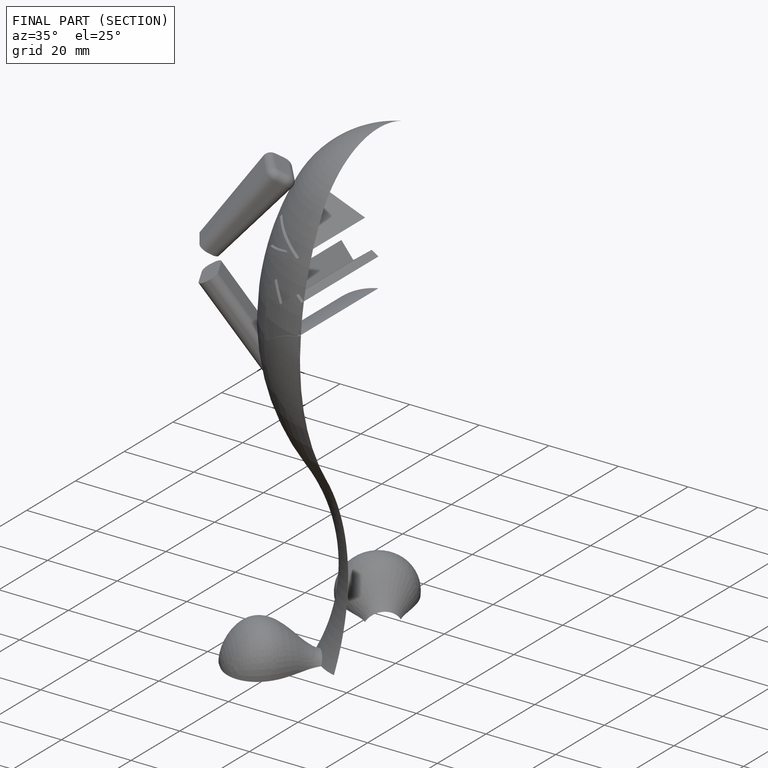
[diagram: finished part — half-section view (interior)]
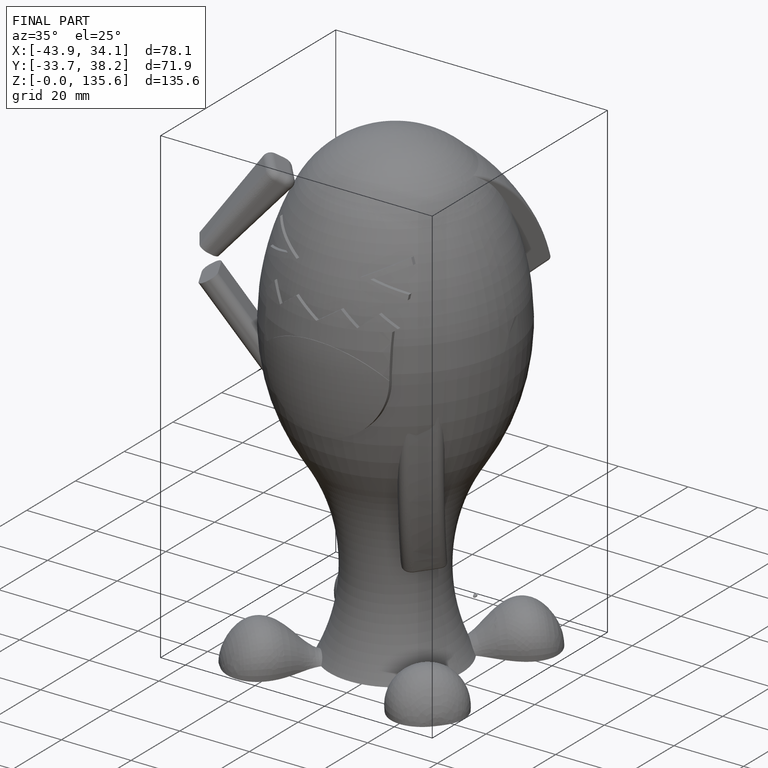
[diagram: finished part — iso view with bounding-box wireframe]
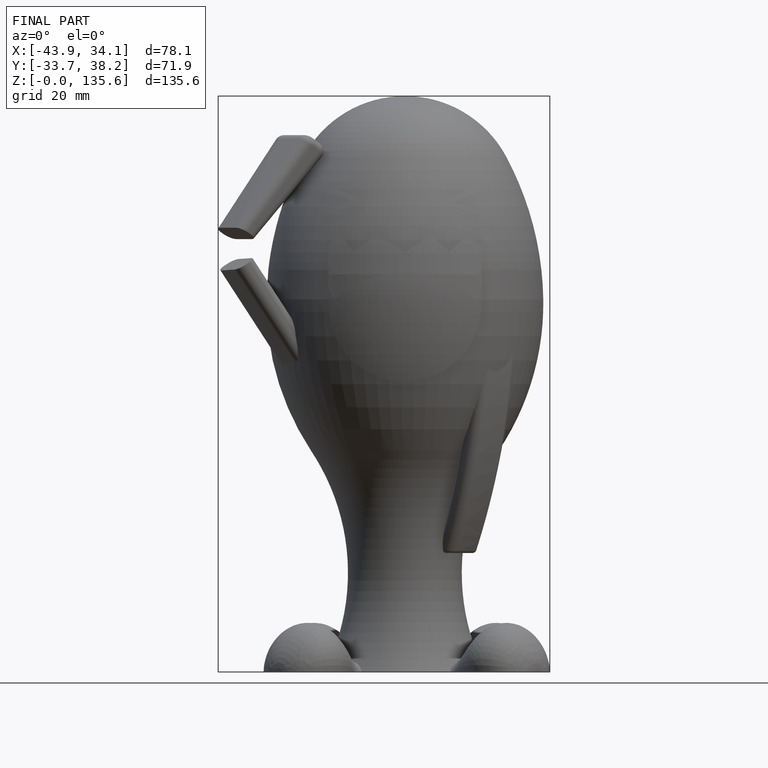
[diagram: finished part — front view with bounding-box wireframe]
